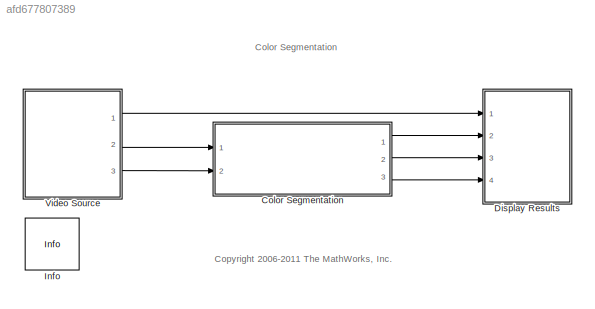
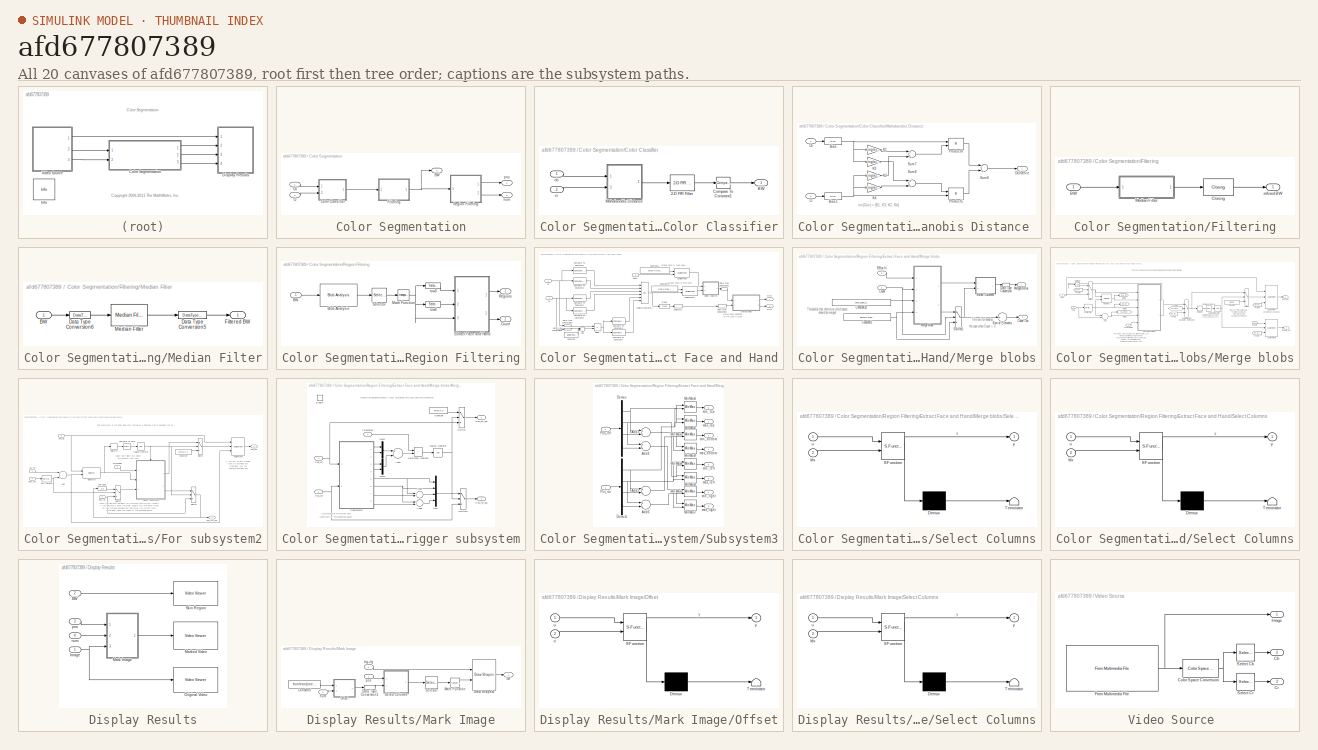
[diagram: thumbnail index - all 20 canvases of the model, root first then tree order]
MODEL slx_afd677807389
KIND model
CONFIG AbsTol = auto
CONFIG FixedStep = auto
CONFIG MaxStep = auto
CONFIG MinStep = auto
CONFIG PreLoadFcn = max_num_blobs = 30;\n% threshold to compare against distance \n% between closest bounding box edges;\n% if the distance in row and column direction\n% is less than the specified threshold, bounding\n% boxes are merged.\nbbox_edge_distance_threshold = [3 3];
CONFIG RelTol = 1e-3
CONFIG SampleTimeConstraint = Unconstrained
CONFIG Solver = FixedStepDiscrete
CONFIG SolverMode = Auto
CONFIG SolverName = FixedStepDiscrete
CONFIG StartTime = 0.0
CONFIG StopTime = inf
BLOCK [SubSystem] Color Segmentation
  Ports = [2, 3]
  RequestExecContextInheritance = off
  Variant = off
BLOCK [Outport] Color Segmentation/BW
  IconDisplay = Port number
BLOCK [Inport] Color Segmentation/Cb
  IconDisplay = Port number
BLOCK [SubSystem] Color Segmentation/Color Classifier
  Ports = [2, 1]
  RequestExecContextInheritance = off
  Variant = off
BLOCK [Reference] Color Segmentation/Color Classifier/2-D FIR Filter  REF=visionfilter/2-D FIR Filter
  Ports = [1, 1]
  SourceBlock = visionfilter/2-D FIR Filter
  SourceType = 2-D FIR Filter
BLOCK [Outport] Color Segmentation/Color Classifier/BW
  IconDisplay = Port number
BLOCK [Reference] Color Segmentation/Color Classifier/Compare To Constant1  REF=simulink/Logic and Bit
Operations/Compare
To Constant
  Ports = [1, 1]
  SourceBlock = simulink/Logic and Bit\nOperations/Compare\nTo Constant
  SourceType = Compare To Constant
BLOCK [SubSystem] Color Segmentation/Color Classifier/Mahalanobis Distance 
  Ports = [2, 1]
  RequestExecContextInheritance = off
  Variant = off
BLOCK [Bias] Color Segmentation/Color Classifier/Mahalanobis Distance /Bias
  Bias = -single(107.9649/255)
  SaturateOnIntegerOverflow = off
BLOCK [Bias] Color Segmentation/Color Classifier/Mahalanobis Distance /Bias1
  Bias = -single(140.8913/255)
  SaturateOnIntegerOverflow = off
BLOCK [Inport] Color Segmentation/Color Classifier/Mahalanobis Distance /Cb
  IconDisplay = Port number
BLOCK [Inport] Color Segmentation/Color Classifier/Mahalanobis Distance /Cr
  IconDisplay = Port number
  Port = 2
BLOCK [Outport] Color Segmentation/Color Classifier/Mahalanobis Distance /Distance
  IconDisplay = Port number
BLOCK [Gain] Color Segmentation/Color Classifier/Mahalanobis Distance /K1
  Gain = single(1.8328501e+03)
BLOCK [Gain] Color Segmentation/Color Classifier/Mahalanobis Distance /K2
  Gain = single(2.2506719e+03)
BLOCK [Gain] Color Segmentation/Color Classifier/Mahalanobis Distance /K3
  Gain = single(2.2506719e+03)
BLOCK [Gain] Color Segmentation/Color Classifier/Mahalanobis Distance /K4
  Gain = single(6.8658257e+03)
BLOCK [Product] Color Segmentation/Color Classifier/Mahalanobis Distance /Product4
  Ports = [2, 1]
  RndMeth = Floor
BLOCK [Product] Color Segmentation/Color Classifier/Mahalanobis Distance /Product5
  Ports = [2, 1]
  RndMeth = Floor
BLOCK [Sum] Color Segmentation/Color Classifier/Mahalanobis Distance /Sum6
  Ports = [2, 1]
BLOCK [Sum] Color Segmentation/Color Classifier/Mahalanobis Distance /Sum7
  Ports = [2, 1]
BLOCK [Sum] Color Segmentation/Color Classifier/Mahalanobis Distance /Sum8
  Ports = [2, 1]
BLOCK [Inport] Color Segmentation/Color Classifier/cb
  IconDisplay = Port number
BLOCK [Inport] Color Segmentation/Color Classifier/cr
  IconDisplay = Port number
  Port = 2
BLOCK [Inport] Color Segmentation/Cr
  IconDisplay = Port number
  Port = 2
BLOCK [SubSystem] Color Segmentation/Filtering
  Ports = [1, 1]
  RequestExecContextInheritance = off
  Variant = off
BLOCK [Inport] Color Segmentation/Filtering/BW
  IconDisplay = Port number
BLOCK [Reference] Color Segmentation/Filtering/Closing  REF=visionmorphops/Closing
  Ports = [1, 1]
  SourceBlock = visionmorphops/Closing
  SourceType = Closing
BLOCK [SubSystem] Color Segmentation/Filtering/Median Filter
  Ports = [1, 1]
  RequestExecContextInheritance = off
  Variant = off
BLOCK [Inport] Color Segmentation/Filtering/Median Filter/BW
  IconDisplay = Port number
BLOCK [DataTypeConversion] Color Segmentation/Filtering/Median Filter/Data Type Conversion5
  OutDataTypeStr = boolean
BLOCK [DataTypeConversion] Color Segmentation/Filtering/Median Filter/Data Type Conversion6
  OutDataTypeStr = single
BLOCK [Outport] Color Segmentation/Filtering/Median Filter/Filtered BW
  IconDisplay = Port number
BLOCK [Reference] Color Segmentation/Filtering/Median Filter/Median Filter  REF=visionanalysis/Median Filter
  Ports = [1, 1]
  SourceBlock = visionanalysis/Median Filter
  SourceType = Median Filter
BLOCK [Outport] Color Segmentation/Filtering/refined BW
  IconDisplay = Port number
BLOCK [SubSystem] Color Segmentation/Region Filtering
  Ports = [1, 2]
  RequestExecContextInheritance = off
  Variant = off
BLOCK [Inport] Color Segmentation/Region Filtering/BW
  IconDisplay = Port number
BLOCK [Reference] Color Segmentation/Region Filtering/Blob Analysis  REF=visionstatistics/Blob Analysis
  Ports = [1, 1]
  SourceBlock = visionstatistics/Blob Analysis
  SourceType = Blob Analysis
  Tag = vipblks_row_conv
BLOCK [Outport] Color Segmentation/Region Filtering/Count
  IconDisplay = Port number
  Port = 2
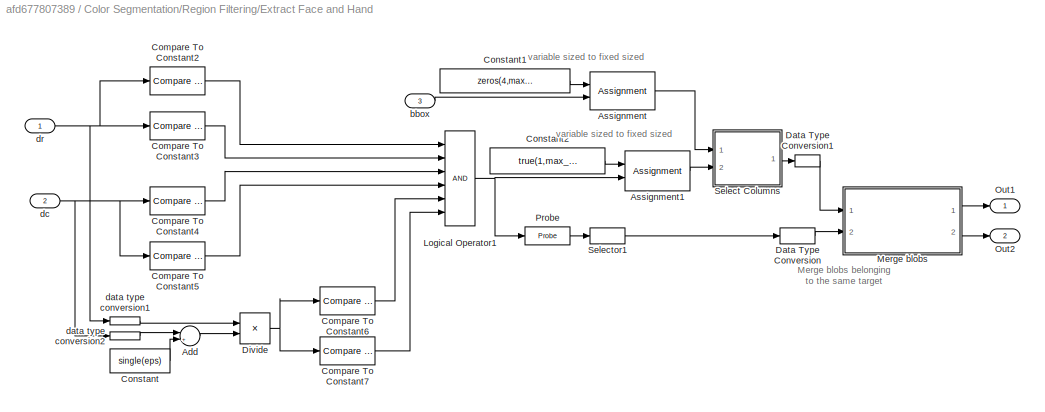
BLOCK [SubSystem] Color Segmentation/Region Filtering/Extract Face and Hand
  Ports = [3, 2]
  RequestExecContextInheritance = off
  Variant = off
BLOCK [Sum] Color Segmentation/Region Filtering/Extract Face and Hand/Add
  IconShape = round
  InputSameDT = off
  Inputs = |++
  OutDataTypeStr = Inherit: Inherit via internal rule
  Ports = [2, 1]
  SaturateOnIntegerOverflow = off
BLOCK [Assignment] Color Segmentation/Region Filtering/Extract Face and Hand/Assignment
  IndexMode = Zero-based
  IndexOptions = Assign all,Starting index (dialog)
  Indices = 0,0
  NumberOfDimensions = 2
  OutputInitialize = Specify size for each dimension in table
  OutputSizes = 1,1
  Ports = [2, 1]
BLOCK [Assignment] Color Segmentation/Region Filtering/Extract Face and Hand/Assignment1
  IndexMode = Zero-based
  IndexOptions = Assign all,Starting index (dialog)
  Indices = 0,0
  NumberOfDimensions = 2
  OutputInitialize = Specify size for each dimension in table
  OutputSizes = 1,1
  Ports = [2, 1]
BLOCK [Reference] Color Segmentation/Region Filtering/Extract Face and Hand/Compare To Constant2  REF=simulink/Logic and Bit
Operations/Compare
To Constant
  Ports = [1, 1]
  SourceBlock = simulink/Logic and Bit\nOperations/Compare\nTo Constant
  SourceType = Compare To Constant
BLOCK [Reference] Color Segmentation/Region Filtering/Extract Face and Hand/Compare To Constant3  REF=simulink/Logic and Bit
Operations/Compare
To Constant
  Ports = [1, 1]
  SourceBlock = simulink/Logic and Bit\nOperations/Compare\nTo Constant
  SourceType = Compare To Constant
BLOCK [Reference] Color Segmentation/Region Filtering/Extract Face and Hand/Compare To Constant4  REF=simulink/Logic and Bit
Operations/Compare
To Constant
  Ports = [1, 1]
  SourceBlock = simulink/Logic and Bit\nOperations/Compare\nTo Constant
  SourceType = Compare To Constant
BLOCK [Reference] Color Segmentation/Region Filtering/Extract Face and Hand/Compare To Constant5  REF=simulink/Logic and Bit
Operations/Compare
To Constant
  Ports = [1, 1]
  SourceBlock = simulink/Logic and Bit\nOperations/Compare\nTo Constant
  SourceType = Compare To Constant
BLOCK [Reference] Color Segmentation/Region Filtering/Extract Face and Hand/Compare To Constant6  REF=simulink/Logic and Bit
Operations/Compare
To Constant
  Ports = [1, 1]
  SourceBlock = simulink/Logic and Bit\nOperations/Compare\nTo Constant
  SourceType = Compare To Constant
BLOCK [Reference] Color Segmentation/Region Filtering/Extract Face and Hand/Compare To Constant7  REF=simulink/Logic and Bit
Operations/Compare
To Constant
  Ports = [1, 1]
  SourceBlock = simulink/Logic and Bit\nOperations/Compare\nTo Constant
  SourceType = Compare To Constant
BLOCK [Constant] Color Segmentation/Region Filtering/Extract Face and Hand/Constant
  Value = single(eps)
BLOCK [Constant] Color Segmentation/Region Filtering/Extract Face and Hand/Constant1
  OutDataTypeStr = int32
  Value = zeros(4,max_num_blobs)
BLOCK [Constant] Color Segmentation/Region Filtering/Extract Face and Hand/Constant2
  Value = true(1,max_num_blobs)
  VectorParams1D = off
BLOCK [DataTypeConversion] Color Segmentation/Region Filtering/Extract Face and Hand/Data Type Conversion
  OutDataTypeStr = uint8
  RndMeth = Floor
  SaturateOnIntegerOverflow = off
BLOCK [DataTypeConversion] Color Segmentation/Region Filtering/Extract Face and Hand/Data Type Conversion1
  OutDataTypeStr = int32
  RndMeth = Floor
  SaturateOnIntegerOverflow = off
BLOCK [Product] Color Segmentation/Region Filtering/Extract Face and Hand/Divide
  InputSameDT = off
  Inputs = */
  OutDataTypeStr = Inherit: Inherit via internal rule
  Ports = [2, 1]
  RndMeth = Floor
  SaturateOnIntegerOverflow = off
BLOCK [Logic] Color Segmentation/Region Filtering/Extract Face and Hand/Logical Operator1
  AllPortsSameDT = off
  Inputs = 6
  OutDataTypeStr = boolean
  Ports = [6, 1]
BLOCK [SubSystem] Color Segmentation/Region Filtering/Extract Face and Hand/Merge blobs
  Ports = [2, 2]
  RequestExecContextInheritance = off
  Variant = off
BLOCK [Inport] Color Segmentation/Region Filtering/Extract Face and Hand/Merge blobs/BBox In
  IconDisplay = Port number
BLOCK [Constant] Color Segmentation/Region Filtering/Extract Face and Hand/Merge blobs/Constant1
  OutDataTypeStr = Inherit: Inherit via back propagation
  Value = zeros(1,max_num_blobs)
  VectorParams1D = off
BLOCK [Constant] Color Segmentation/Region Filtering/Extract Face and Hand/Merge blobs/Constant22
  OutDataTypeStr = Inherit: Inherit via back propagation
  Value = bbox_edge_distance_threshold
  VectorParams1D = off
BLOCK [Inport] Color Segmentation/Region Filtering/Extract Face and Hand/Merge blobs/Count
  IconDisplay = Port number
  Port = 2
BLOCK [Outport] Color Segmentation/Region Filtering/Extract Face and Hand/Merge blobs/Count Out
  IconDisplay = Port number
  Port = 2
BLOCK [DataTypeConversion] Color Segmentation/Region Filtering/Extract Face and Hand/Merge blobs/Data Type Conversion
  OutDataTypeStr = int32
  RndMeth = Floor
  SaturateOnIntegerOverflow = off
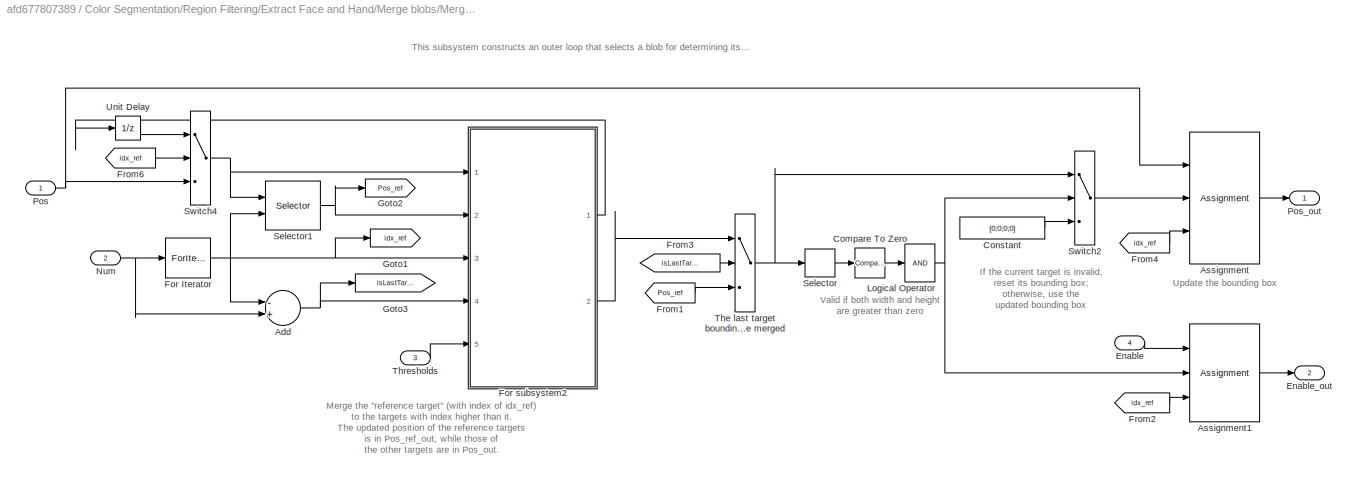
BLOCK [SubSystem] Color Segmentation/Region Filtering/Extract Face and Hand/Merge blobs/Merge blobs
  Ports = [4, 2]
  RequestExecContextInheritance = off
  Variant = off
BLOCK [Sum] Color Segmentation/Region Filtering/Extract Face and Hand/Merge blobs/Merge blobs/Add
  InputSameDT = off
  Inputs = -+
  OutDataTypeStr = Inherit: Inherit via internal rule
  Ports = [2, 1]
  SaturateOnIntegerOverflow = off
BLOCK [Assignment] Color Segmentation/Region Filtering/Extract Face and Hand/Merge blobs/Merge blobs/Assignment
  IndexOptions = Assign all,Index vector (port)
  Indices = (-1),(-1)
  NumberOfDimensions = 2
  OutputSizes = 1, 1
  Ports = [3, 1]
BLOCK [Assignment] Color Segmentation/Region Filtering/Extract Face and Hand/Merge blobs/Merge blobs/Assignment1
  IndexOptions = Assign all,Index vector (port)
  Indices = (-1),(-1)
  NumberOfDimensions = 2
  OutputSizes = 1, 1
  Ports = [3, 1]
BLOCK [Reference] Color Segmentation/Region Filtering/Extract Face and Hand/Merge blobs/Merge blobs/Compare To Zero  REF=simulink/Logic and Bit
Operations/Compare
To Zero
  Ports = [1, 1]
  SourceBlock = simulink/Logic and Bit\nOperations/Compare\nTo Zero
  SourceType = Compare To Zero
BLOCK [Constant] Color Segmentation/Region Filtering/Extract Face and Hand/Merge blobs/Merge blobs/Constant
  OutDataTypeStr = Inherit: Inherit via back propagation
  Value = [0;0;0;0]
BLOCK [Inport] Color Segmentation/Region Filtering/Extract Face and Hand/Merge blobs/Merge blobs/Enable
  IconDisplay = Port number
  Port = 4
BLOCK [Outport] Color Segmentation/Region Filtering/Extract Face and Hand/Merge blobs/Merge blobs/Enable_out
  IconDisplay = Port number
  Port = 2
BLOCK [ForIterator] Color Segmentation/Region Filtering/Extract Face and Hand/Merge blobs/Merge blobs/For Iterator
  IterationSource = external
  Ports = [1, 1]
  ResetStates = reset
BLOCK [SubSystem] Color Segmentation/Region Filtering/Extract Face and Hand/Merge blobs/Merge blobs/For subsystem2
  Ports = [5, 2]
  RequestExecContextInheritance = off
  Variant = off
BLOCK [Sum] Color Segmentation/Region Filtering/Extract Face and Hand/Merge blobs/Merge blobs/For subsystem2/Add
  InputSameDT = off
  OutDataTypeStr = Inherit: Inherit via internal rule
  Ports = [2, 1]
  SaturateOnIntegerOverflow = off
BLOCK [Assignment] Color Segmentation/Region Filtering/Extract Face and Hand/Merge blobs/Merge blobs/For subsystem2/Assignment
  IndexOptions = Assign all,Index vector (port)
  Indices = (-1),(-1)
  NumberOfDimensions = 2
  OutputSizes = 1, 1
  Ports = [3, 1]
BLOCK [Reference] Color Segmentation/Region Filtering/Extract Face and Hand/Merge blobs/Merge blobs/For subsystem2/Compare To Zero  REF=simulink/Logic and Bit
Operations/Compare
To Zero
  Ports = [1, 1]
  SourceBlock = simulink/Logic and Bit\nOperations/Compare\nTo Zero
  SourceType = Compare To Zero
BLOCK [Constant] Color Segmentation/Region Filtering/Extract Face and Hand/Merge blobs/Merge blobs/For subsystem2/Constant
  OutDataTypeStr = Inherit: Inherit via back propagation
  Value = zeros(4,1)
  VectorParams1D = off
BLOCK [ForIterator] Color Segmentation/Region Filtering/Extract Face and Hand/Merge blobs/Merge blobs/For subsystem2/For Iterator
  IterationSource = external
  Ports = [1, 1]
  ResetStates = reset
BLOCK [Inport] Color Segmentation/Region Filtering/Extract Face and Hand/Merge blobs/Merge blobs/For subsystem2/Idx_ref
  IconDisplay = Port number
  Port = 3
BLOCK [Logic] Color Segmentation/Region Filtering/Extract Face and Hand/Merge blobs/Merge blobs/For subsystem2/Logical Operator
  AllPortsSameDT = off
  Inputs = 1
  OutDataTypeStr = boolean
  Ports = [1, 1]
BLOCK [Inport] Color Segmentation/Region Filtering/Extract Face and Hand/Merge blobs/Merge blobs/For subsystem2/Num_cur
  IconDisplay = Port number
  Port = 4
BLOCK [Inport] Color Segmentation/Region Filtering/Extract Face and Hand/Merge blobs/Merge blobs/For subsystem2/Pos_all
  IconDisplay = Port number
BLOCK [Outport] Color Segmentation/Region Filtering/Extract Face and Hand/Merge blobs/Merge blobs/For subsystem2/Pos_out
  IconDisplay = Port number
BLOCK [Inport] Color Segmentation/Region Filtering/Extract Face and Hand/Merge blobs/Merge blobs/For subsystem2/Pos_ref
  IconDisplay = Port number
  Port = 2
BLOCK [Outport] Color Segmentation/Region Filtering/Extract Face and Hand/Merge blobs/Merge blobs/For subsystem2/Pos_ref_out
  IconDisplay = Port number
  Port = 2
BLOCK [Selector] Color Segmentation/Region Filtering/Extract Face and Hand/Merge blobs/Merge blobs/For subsystem2/Selector1
  IndexOptions = Index vector (dialog)
  Indices = ([3 4])
  InputPortWidth = 4
  OutputSizes = 1
  Ports = [1, 1]
BLOCK [Selector] Color Segmentation/Region Filtering/Extract Face and Hand/Merge blobs/Merge blobs/For subsystem2/Selector3
  IndexOptions = Select all,Index vector (port)
  Indices = (-1),(-1)
  InputPortWidth = 3
  NumberOfDimensions = 2
  OutputSizes = 1
  Ports = [2, 1]
BLOCK [Switch] Color Segmentation/Region Filtering/Extract Face and Hand/Merge blobs/Merge blobs/For subsystem2/Switch
  Criteria = u2 ~= 0
  InputSameDT = off
  SaturateOnIntegerOverflow = off
BLOCK [Switch] Color Segmentation/Region Filtering/Extract Face and Hand/Merge blobs/Merge blobs/For subsystem2/Switch1
  Criteria = u2 ~= 0
  InputSameDT = off
  SaturateOnIntegerOverflow = off
BLOCK [Switch] Color Segmentation/Region Filtering/Extract Face and Hand/Merge blobs/Merge blobs/For subsystem2/Switch2
  Criteria = u2 > Threshold
  InputSameDT = off
  SaturateOnIntegerOverflow = off
  Threshold = 1
BLOCK [Inport] Color Segmentation/Region Filtering/Extract Face and Hand/Merge blobs/Merge blobs/For subsystem2/Thresholds
  IconDisplay = Port number
  Port = 5
BLOCK [SubSystem] Color Segmentation/Region Filtering/Extract Face and Hand/Merge blobs/Merge blobs/For subsystem2/Trigger subsystem
  Ports = [3, 2, 1]
  RequestExecContextInheritance = off
  Variant = off
BLOCK [Sum] Color Segmentation/Region Filtering/Extract Face and Hand/Merge blobs/Merge blobs/For subsystem2/Trigger subsystem/Add2
  InputSameDT = off
  Inputs = +-
  OutDataTypeStr = Inherit: Inherit via internal rule
  Ports = [2, 1]
  SaturateOnIntegerOverflow = off
BLOCK [Sum] Color Segmentation/Region Filtering/Extract Face and Hand/Merge blobs/Merge blobs/For subsystem2/Trigger subsystem/Add7
  InputSameDT = off
  Inputs = -+
  OutDataTypeStr = Inherit: Inherit via internal rule
  Ports = [2, 1]
  SaturateOnIntegerOverflow = off
BLOCK [Sum] Color Segmentation/Region Filtering/Extract Face and Hand/Merge blobs/Merge blobs/For subsystem2/Trigger subsystem/Add8
  InputSameDT = off
  Inputs = -+
  OutDataTypeStr = Inherit: Inherit via internal rule
  Ports = [2, 1]
  SaturateOnIntegerOverflow = off
BLOCK [Constant] Color Segmentation/Region Filtering/Extract Face and Hand/Merge blobs/Merge blobs/For subsystem2/Trigger subsystem/Constant
  OutDataTypeStr = Inherit: Inherit via back propagation
  Value = zeros(4,1)
  VectorParams1D = off
BLOCK [EnablePort] Color Segmentation/Region Filtering/Extract Face and Hand/Merge blobs/Merge blobs/For subsystem2/Trigger subsystem/Enable
  Ports = []
  PropagateVarSize = During execution
BLOCK [Logic] Color Segmentation/Region Filtering/Extract Face and Hand/Merge blobs/Merge blobs/For subsystem2/Trigger subsystem/Logical Operator
  AllPortsSameDT = off
  Inputs = 1
  OutDataTypeStr = boolean
  Ports = [1, 1]
BLOCK [Mux] Color Segmentation/Region Filtering/Extract Face and Hand/Merge blobs/Merge blobs/For subsystem2/Trigger subsystem/Mux
  DisplayOption = bar
  Ports = [4, 1]
BLOCK [Mux] Color Segmentation/Region Filtering/Extract Face and Hand/Merge blobs/Merge blobs/For subsystem2/Trigger subsystem/Mux2
  DisplayOption = bar
  Inputs = 2
  Ports = [2, 1]
BLOCK [Mux] Color Segmentation/Region Filtering/Extract Face and Hand/Merge blobs/Merge blobs/For subsystem2/Trigger subsystem/Mux3
  DisplayOption = bar
  Inputs = 2
  Ports = [2, 1]
BLOCK [Inport] Color Segmentation/Region Filtering/Extract Face and Hand/Merge blobs/Merge blobs/For subsystem2/Trigger subsystem/Pos_cur
  IconDisplay = Port number
  Port = 2
BLOCK [Outport] Color Segmentation/Region Filtering/Extract Face and Hand/Merge blobs/Merge blobs/For subsystem2/Trigger subsystem/Pos_cur_out
  IconDisplay = Port number
BLOCK [Inport] Color Segmentation/Region Filtering/Extract Face and Hand/Merge blobs/Merge blobs/For subsystem2/Trigger subsystem/Pos_ref
  IconDisplay = Port number
  Port = 3
BLOCK [Outport] Color Segmentation/Region Filtering/Extract Face and Hand/Merge blobs/Merge blobs/For subsystem2/Trigger subsystem/Pos_ref_out
  IconDisplay = Port number
  Port = 2
BLOCK [RelationalOperator] Color Segmentation/Region Filtering/Extract Face and Hand/Merge blobs/Merge blobs/For subsystem2/Trigger subsystem/Relational Operator
  InputSameDT = off
  Operator = >
  OutDataTypeStr = boolean
  Ports = [2, 1]
BLOCK [SubSystem] Color Segmentation/Region Filtering/Extract Face and Hand/Merge blobs/Merge blobs/For subsystem2/Trigger subsystem/Subsystem3
  Ports = [2, 8]
  RequestExecContextInheritance = off
  Variant = off
BLOCK [Sum] Color Segmentation/Region Filtering/Extract Face and Hand/Merge blobs/Merge blobs/For subsystem2/Trigger subsystem/Subsystem3/Add3
  InputSameDT = off
  OutDataTypeStr = Inherit: Inherit via internal rule
  Ports = [2, 1]
  SaturateOnIntegerOverflow = off
BLOCK [Sum] Color Segmentation/Region Filtering/Extract Face and Hand/Merge blobs/Merge blobs/For subsystem2/Trigger subsystem/Subsystem3/Add4
  InputSameDT = off
  OutDataTypeStr = Inherit: Inherit via internal rule
  Ports = [2, 1]
  SaturateOnIntegerOverflow = off
BLOCK [Sum] Color Segmentation/Region Filtering/Extract Face and Hand/Merge blobs/Merge blobs/For subsystem2/Trigger subsystem/Subsystem3/Add5
  InputSameDT = off
  OutDataTypeStr = Inherit: Inherit via internal rule
  Ports = [2, 1]
  SaturateOnIntegerOverflow = off
BLOCK [Sum] Color Segmentation/Region Filtering/Extract Face and Hand/Merge blobs/Merge blobs/For subsystem2/Trigger subsystem/Subsystem3/Add6
  InputSameDT = off
  OutDataTypeStr = Inherit: Inherit via internal rule
  Ports = [2, 1]
  SaturateOnIntegerOverflow = off
BLOCK [Demux] Color Segmentation/Region Filtering/Extract Face and Hand/Merge blobs/Merge blobs/For subsystem2/Trigger subsystem/Subsystem3/Demux
  DisplayOption = bar
  Ports = [1, 4]
BLOCK [Demux] Color Segmentation/Region Filtering/Extract Face and Hand/Merge blobs/Merge blobs/For subsystem2/Trigger subsystem/Subsystem3/Demux1
  DisplayOption = bar
  Ports = [1, 4]
BLOCK [MinMax] Color Segmentation/Region Filtering/Extract Face and Hand/Merge blobs/Merge blobs/For subsystem2/Trigger subsystem/Subsystem3/MinMax2
  Function = max
  InputSameDT = off
  Inputs = 2
  Ports = [2, 1]
  SaturateOnIntegerOverflow = off
BLOCK [MinMax] Color Segmentation/Region Filtering/Extract Face and Hand/Merge blobs/Merge blobs/For subsystem2/Trigger subsystem/Subsystem3/MinMax3
  InputSameDT = off
  Inputs = 2
  Ports = [2, 1]
  SaturateOnIntegerOverflow = off
BLOCK [MinMax] Color Segmentation/Region Filtering/Extract Face and Hand/Merge blobs/Merge blobs/For subsystem2/Trigger subsystem/Subsystem3/MinMax4
  Function = max
  InputSameDT = off
  Inputs = 2
  Ports = [2, 1]
  SaturateOnIntegerOverflow = off
BLOCK [MinMax] Color Segmentation/Region Filtering/Extract Face and Hand/Merge blobs/Merge blobs/For subsystem2/Trigger subsystem/Subsystem3/MinMax5
  InputSameDT = off
  Inputs = 2
  Ports = [2, 1]
  SaturateOnIntegerOverflow = off
BLOCK [MinMax] Color Segmentation/Region Filtering/Extract Face and Hand/Merge blobs/Merge blobs/For subsystem2/Trigger subsystem/Subsystem3/MinMax6
  InputSameDT = off
  Inputs = 2
  Ports = [2, 1]
  SaturateOnIntegerOverflow = off
BLOCK [MinMax] Color Segmentation/Region Filtering/Extract Face and Hand/Merge blobs/Merge blobs/For subsystem2/Trigger subsystem/Subsystem3/MinMax7
  Function = max
  InputSameDT = off
  Inputs = 2
  Ports = [2, 1]
  SaturateOnIntegerOverflow = off
BLOCK [MinMax] Color Segmentation/Region Filtering/Extract Face and Hand/Merge blobs/Merge blobs/For subsystem2/Trigger subsystem/Subsystem3/MinMax8
  InputSameDT = off
  Inputs = 2
  Ports = [2, 1]
  SaturateOnIntegerOverflow = off
BLOCK [MinMax] Color Segmentation/Region Filtering/Extract Face and Hand/Merge blobs/Merge blobs/For subsystem2/Trigger subsystem/Subsystem3/MinMax9
  Function = max
  InputSameDT = off
  Inputs = 2
  Ports = [2, 1]
  SaturateOnIntegerOverflow = off
BLOCK [Inport] Color Segmentation/Region Filtering/Extract Face and Hand/Merge blobs/Merge blobs/For subsystem2/Trigger subsystem/Subsystem3/Pos_cur
  IconDisplay = Port number
BLOCK [Inport] Color Segmentation/Region Filtering/Extract Face and Hand/Merge blobs/Merge blobs/For subsystem2/Trigger subsystem/Subsystem3/Pos_ref
  IconDisplay = Port number
  Port = 2
BLOCK [Outport] Color Segmentation/Region Filtering/Extract Face and Hand/Merge blobs/Merge blobs/For subsystem2/Trigger subsystem/Subsystem3/max_bottom
  IconDisplay = Port number
  Port = 7
BLOCK [Outport] Color Segmentation/Region Filtering/Extract Face and Hand/Merge blobs/Merge blobs/For subsystem2/Trigger subsystem/Subsystem3/max_left
  IconDisplay = Port number
  Port = 2
BLOCK [Outport] Color Segmentation/Region Filtering/Extract Face and Hand/Merge blobs/Merge blobs/For subsystem2/Trigger subsystem/Subsystem3/max_right
  IconDisplay = Port number
  Port = 8
BLOCK [Outport] Color Segmentation/Region Filtering/Extract Face and Hand/Merge blobs/Merge blobs/For subsystem2/Trigger subsystem/Subsystem3/max_top
  IconDisplay = Port number
BLOCK [Outport] Color Segmentation/Region Filtering/Extract Face and Hand/Merge blobs/Merge blobs/For subsystem2/Trigger subsystem/Subsystem3/min_bottom
  IconDisplay = Port number
  Port = 3
BLOCK [Outport] Color Segmentation/Region Filtering/Extract Face and Hand/Merge blobs/Merge blobs/For subsystem2/Trigger subsystem/Subsystem3/min_left
  IconDisplay = Port number
  Port = 6
BLOCK [Outport] Color Segmentation/Region Filtering/Extract Face and Hand/Merge blobs/Merge blobs/For subsystem2/Trigger subsystem/Subsystem3/min_right
  IconDisplay = Port number
  Port = 4
BLOCK [Outport] Color Segmentation/Region Filtering/Extract Face and Hand/Merge blobs/Merge blobs/For subsystem2/Trigger subsystem/Subsystem3/min_top
  IconDisplay = Port number
  Port = 5
BLOCK [Switch] Color Segmentation/Region Filtering/Extract Face and Hand/Merge blobs/Merge blobs/For subsystem2/Trigger subsystem/Switch
  Criteria = u2 ~= 0
  InputSameDT = off
  SaturateOnIntegerOverflow = off
BLOCK [Switch] Color Segmentation/Region Filtering/Extract Face and Hand/Merge blobs/Merge blobs/For subsystem2/Trigger subsystem/Switch1
  Criteria = u2 ~= 0
  InputSameDT = off
  SaturateOnIntegerOverflow = off
BLOCK [Inport] Color Segmentation/Region Filtering/Extract Face and Hand/Merge blobs/Merge blobs/For subsystem2/Trigger subsystem/Thresholds
  IconDisplay = Port number
BLOCK [UnitDelay] Color Segmentation/Region Filtering/Extract Face and Hand/Merge blobs/Merge blobs/For subsystem2/Unit Delay
  InputProcessing = Elements as channels (sample based)
  SampleTime = -1
BLOCK [From] Color Segmentation/Region Filtering/Extract Face and Hand/Merge blobs/Merge blobs/From1
  CloseFcn = tagdialog Close
  GotoTag = Pos_ref
BLOCK [From] Color Segmentation/Region Filtering/Extract Face and Hand/Merge blobs/Merge blobs/From2
  CloseFcn = tagdialog Close
  GotoTag = idx_ref
BLOCK [From] Color Segmentation/Region Filtering/Extract Face and Hand/Merge blobs/Merge blobs/From3
  CloseFcn = tagdialog Close
  GotoTag = isLastTarget
BLOCK [From] Color Segmentation/Region Filtering/Extract Face and Hand/Merge blobs/Merge blobs/From4
  CloseFcn = tagdialog Close
  GotoTag = idx_ref
BLOCK [From] Color Segmentation/Region Filtering/Extract Face and Hand/Merge blobs/Merge blobs/From6
  CloseFcn = tagdialog Close
  GotoTag = idx_ref
BLOCK [Goto] Color Segmentation/Region Filtering/Extract Face and Hand/Merge blobs/Merge blobs/Goto1
  GotoTag = idx_ref
BLOCK [Goto] Color Segmentation/Region Filtering/Extract Face and Hand/Merge blobs/Merge blobs/Goto2
  GotoTag = Pos_ref
BLOCK [Goto] Color Segmentation/Region Filtering/Extract Face and Hand/Merge blobs/Merge blobs/Goto3
  GotoTag = isLastTarget
BLOCK [Logic] Color Segmentation/Region Filtering/Extract Face and Hand/Merge blobs/Merge blobs/Logical Operator
  AllPortsSameDT = off
  Inputs = 1
  OutDataTypeStr = boolean
  Ports = [1, 1]
BLOCK [Inport] Color Segmentation/Region Filtering/Extract Face and Hand/Merge blobs/Merge blobs/Num
  IconDisplay = Port number
  Port = 2
BLOCK [Inport] Color Segmentation/Region Filtering/Extract Face and Hand/Merge blobs/Merge blobs/Pos
  IconDisplay = Port number
BLOCK [Outport] Color Segmentation/Region Filtering/Extract Face and Hand/Merge blobs/Merge blobs/Pos_out
  IconDisplay = Port number
BLOCK [Selector] Color Segmentation/Region Filtering/Extract Face and Hand/Merge blobs/Merge blobs/Selector
  IndexOptions = Index vector (dialog)
  Indices = ([3 4])
  InputPortWidth = 4
  OutputSizes = 1
  Ports = [1, 1]
BLOCK [Selector] Color Segmentation/Region Filtering/Extract Face and Hand/Merge blobs/Merge blobs/Selector1
  IndexOptions = Select all,Index vector (port)
  Indices = (-1),(-1)
  InputPortWidth = 3
  NumberOfDimensions = 2
  OutputSizes = 1
  Ports = [2, 1]
BLOCK [Switch] Color Segmentation/Region Filtering/Extract Face and Hand/Merge blobs/Merge blobs/Switch2
  Criteria = u2 ~= 0
  InputSameDT = off
  SaturateOnIntegerOverflow = off
  Threshold = 1
BLOCK [Switch] Color Segmentation/Region Filtering/Extract Face and Hand/Merge blobs/Merge blobs/Switch4
  Criteria = u2 > Threshold
  SaturateOnIntegerOverflow = off
  Threshold = 1
BLOCK [Switch] Color Segmentation/Region Filtering/Extract Face and Hand/Merge blobs/Merge blobs/The last target bounding box does not need to be merged
  Criteria = u2 ~= 0
  InputSameDT = off
  SaturateOnIntegerOverflow = off
  Threshold = 1
BLOCK [Inport] Color Segmentation/Region Filtering/Extract Face and Hand/Merge blobs/Merge blobs/Thresholds
  IconDisplay = Port number
  Port = 3
BLOCK [UnitDelay] Color Segmentation/Region Filtering/Extract Face and Hand/Merge blobs/Merge blobs/Unit Delay
  InputProcessing = Elements as channels (sample based)
  SampleTime = -1
BLOCK [Outport] Color Segmentation/Region Filtering/Extract Face and Hand/Merge blobs/Merged BBox
  IconDisplay = Port number
BLOCK [SubSystem] Color Segmentation/Region Filtering/Extract Face and Hand/Merge blobs/Select Columns
  ErrorFcn = Stateflow.Translate.translate
  PermitHierarchicalResolution = ExplicitOnly
  Ports = [2, 1]
  RequestExecContextInheritance = off
  SFBlockType = MATLAB Function
  TreatAsAtomicUnit = on
  Variant = off
BLOCK [Demux] Color Segmentation/Region Filtering/Extract Face and Hand/Merge blobs/Select Columns/ Demux 
  Outputs = 1
  Ports = [1, 1]
BLOCK [S-Function] Color Segmentation/Region Filtering/Extract Face and Hand/Merge blobs/Select Columns/ SFunction 
  EnableBusSupport = off
  FunctionName = sf_sfun
  PortCounts = [2 2]
  Ports = [2, 2]
  SFunctionDeploymentMode = off
  Tag = Stateflow S-Function vipcolorsegmentation 4
BLOCK [Terminator] Color Segmentation/Region Filtering/Extract Face and Hand/Merge blobs/Select Columns/ Terminator 
BLOCK [Inport] Color Segmentation/Region Filtering/Extract Face and Hand/Merge blobs/Select Columns/Idx
  IconDisplay = Port number
  Port = 2
BLOCK [Inport] Color Segmentation/Region Filtering/Extract Face and Hand/Merge blobs/Select Columns/u
  IconDisplay = Port number
BLOCK [Outport] Color Segmentation/Region Filtering/Extract Face and Hand/Merge blobs/Select Columns/y
  IconDisplay = Port number
BLOCK [Sum] Color Segmentation/Region Filtering/Extract Face and Hand/Merge blobs/Sum of Elements
  InputSameDT = off
  Inputs = +
  OutDataTypeStr = Inherit: Inherit via internal rule
  Ports = [1, 1]
  SaturateOnIntegerOverflow = off
BLOCK [Switch] Color Segmentation/Region Filtering/Extract Face and Hand/Merge blobs/Switch1
  Criteria = u2 ~= 0
  InputSameDT = off
  SaturateOnIntegerOverflow = off
  Threshold = 1
  ZeroCross = off
BLOCK [Outport] Color Segmentation/Region Filtering/Extract Face and Hand/Out1
  IconDisplay = Port number
BLOCK [Outport] Color Segmentation/Region Filtering/Extract Face and Hand/Out2
  IconDisplay = Port number
  Port = 2
BLOCK [Probe] Color Segmentation/Region Filtering/Extract Face and Hand/Probe
  Ports = [1, 1]
  ProbeComplexSignal = off
  ProbeSampleTime = off
  ProbeSignalDimensions = on
  ProbeWidth = off
  ProbeWidthDataType = uint8
BLOCK [SubSystem] Color Segmentation/Region Filtering/Extract Face and Hand/Select Columns
  ErrorFcn = Stateflow.Translate.translate
  PermitHierarchicalResolution = ExplicitOnly
  Ports = [2, 1]
  RequestExecContextInheritance = off
  SFBlockType = MATLAB Function
  TreatAsAtomicUnit = on
  Variant = off
BLOCK [Demux] Color Segmentation/Region Filtering/Extract Face and Hand/Select Columns/ Demux 
  Outputs = 1
  Ports = [1, 1]
BLOCK [S-Function] Color Segmentation/Region Filtering/Extract Face and Hand/Select Columns/ SFunction 
  EnableBusSupport = off
  FunctionName = sf_sfun
  PortCounts = [2 2]
  Ports = [2, 2]
  SFunctionDeploymentMode = off
  Tag = Stateflow S-Function vipcolorsegmentation 2
BLOCK [Terminator] Color Segmentation/Region Filtering/Extract Face and Hand/Select Columns/ Terminator 
BLOCK [Inport] Color Segmentation/Region Filtering/Extract Face and Hand/Select Columns/Idx
  IconDisplay = Port number
  Port = 2
BLOCK [Inport] Color Segmentation/Region Filtering/Extract Face and Hand/Select Columns/u
  IconDisplay = Port number
BLOCK [Outport] Color Segmentation/Region Filtering/Extract Face and Hand/Select Columns/y
  IconDisplay = Port number
BLOCK [Selector] Color Segmentation/Region Filtering/Extract Face and Hand/Selector1
  IndexOptions = Index vector (dialog),Index vector (dialog)
  Indices = 1,2
  InputPortWidth = 3
  NumberOfDimensions = 2
  OutputSizes = 99,1
  Ports = [1, 1]
BLOCK [Inport] Color Segmentation/Region Filtering/Extract Face and Hand/bbox
  IconDisplay = Port number
  Port = 3
BLOCK [DataTypeConversion] Color Segmentation/Region Filtering/Extract Face and Hand/data type conversion1
  OutDataTypeStr = single
BLOCK [DataTypeConversion] Color Segmentation/Region Filtering/Extract Face and Hand/data type conversion2
  OutDataTypeStr = single
BLOCK [Inport] Color Segmentation/Region Filtering/Extract Face and Hand/dc
  IconDisplay = Port number
  Port = 2
BLOCK [Inport] Color Segmentation/Region Filtering/Extract Face and Hand/dr
  IconDisplay = Port number
BLOCK [Math] Color Segmentation/Region Filtering/Math Function
  Operator = transpose
  Ports = [1, 1]
BLOCK [Outport] Color Segmentation/Region Filtering/Regions
  IconDisplay = Port number
BLOCK [Selector] Color Segmentation/Region Filtering/Selector
  IndexOptions = Select all,Index vector (dialog)
  Indices = [2 1 4 3],[2 1 4 3]
  InputPortWidth = 3
  NumberOfDimensions = 2
  OutputSizes = 1,1
  Ports = [1, 1]
BLOCK [Selector] Color Segmentation/Region Filtering/row3
  IndexOptions = Index vector (dialog),Select all
  Indices = 3,1
  InputPortWidth = 3
  NumberOfDimensions = 2
  OutputSizes = 1,1
  Ports = [1, 1]
BLOCK [Selector] Color Segmentation/Region Filtering/row4
  IndexOptions = Index vector (dialog),Select all
  Indices = 4,1
  InputPortWidth = 3
  NumberOfDimensions = 2
  OutputSizes = 1,1
  Ports = [1, 1]
BLOCK [Outport] Color Segmentation/num
  IconDisplay = Port number
  Port = 3
BLOCK [Outport] Color Segmentation/pos
  IconDisplay = Port number
  Port = 2
BLOCK [SubSystem] Display Results
  Ports = [4]
  RequestExecContextInheritance = off
  Variant = off
BLOCK [Inport] Display Results/BW
  IconDisplay = Port number
  Port = 2
BLOCK [Inport] Display Results/Image
  IconDisplay = Port number
BLOCK [SubSystem] Display Results/Mark Image
  Ports = [3, 1]
  RequestExecContextInheritance = off
  Variant = off
BLOCK [Constant] Display Results/Mark Image/Constant
  Value = boolean(ones(30,1))
BLOCK [DataTypeConversion] Display Results/Mark Image/Data Type Conversion1
  OutDataTypeStr = boolean
  RndMeth = Floor
  SaturateOnIntegerOverflow = off
BLOCK [Reference] Display Results/Mark Image/Draw Shapes2  REF=visiontextngfix/Draw Shapes
  Ports = [2, 1]
  SourceBlock = visiontextngfix/Draw Shapes
  SourceType = Draw Shapes
BLOCK [Outport] Display Results/Mark Image/IM
  IconDisplay = Port number
BLOCK [Math] Display Results/Mark Image/Math Function
  Operator = transpose
  Ports = [1, 1]
BLOCK [SubSystem] Display Results/Mark Image/Offset
  ErrorFcn = Stateflow.Translate.translate
  PermitHierarchicalResolution = ExplicitOnly
  Ports = [2, 1]
  RequestExecContextInheritance = off
  SFBlockType = MATLAB Function
  TreatAsAtomicUnit = on
  Variant = off
BLOCK [Demux] Display Results/Mark Image/Offset/ Demux 
  Outputs = 1
  Ports = [1, 1]
BLOCK [S-Function] Display Results/Mark Image/Offset/ SFunction 
  EnableBusSupport = off
  FunctionName = sf_sfun
  PortCounts = [2 2]
  Ports = [2, 2]
  SFunctionDeploymentMode = off
  Tag = Stateflow S-Function vipcolorsegmentation 3
BLOCK [Terminator] Display Results/Mark Image/Offset/ Terminator 
BLOCK [Inport] Display Results/Mark Image/Offset/o
  IconDisplay = Port number
  Port = 2
BLOCK [Inport] Display Results/Mark Image/Offset/u
  IconDisplay = Port number
BLOCK [Outport] Display Results/Mark Image/Offset/y
  IconDisplay = Port number
BLOCK [SubSystem] Display Results/Mark Image/Select Columns
  ErrorFcn = Stateflow.Translate.translate
  PermitHierarchicalResolution = ExplicitOnly
  Ports = [2, 1]
  RequestExecContextInheritance = off
  SFBlockType = MATLAB Function
  TreatAsAtomicUnit = on
  Variant = off
BLOCK [Demux] Display Results/Mark Image/Select Columns/ Demux 
  Outputs = 1
  Ports = [1, 1]
BLOCK [S-Function] Display Results/Mark Image/Select Columns/ SFunction 
  EnableBusSupport = off
  FunctionName = sf_sfun
  PortCounts = [2 2]
  Ports = [2, 2]
  SFunctionDeploymentMode = off
  Tag = Stateflow S-Function vipcolorsegmentation 1
BLOCK [Terminator] Display Results/Mark Image/Select Columns/ Terminator 
BLOCK [Inport] Display Results/Mark Image/Select Columns/Idx
  IconDisplay = Port number
  Port = 2
BLOCK [Inport] Display Results/Mark Image/Select Columns/u
  IconDisplay = Port number
BLOCK [Outport] Display Results/Mark Image/Select Columns/y
  IconDisplay = Port number
BLOCK [Selector] Display Results/Mark Image/Selector
  IndexOptions = Index vector (dialog),Select all
  Indices = [2 1 4 3],1
  InputPortWidth = 3
  NumberOfDimensions = 2
  OutputSizes = 1,1
  Ports = [1, 1]
BLOCK [Inport] Display Results/Mark Image/bg+fg
  IconDisplay = Port number
  Port = 3
BLOCK [Inport] Display Results/Mark Image/num
  IconDisplay = Port number
  Port = 2
BLOCK [Inport] Display Results/Mark Image/pos
  IconDisplay = Port number
BLOCK [Reference] Display Results/Marked Video  REF=visionsinks/Video Viewer
  Ports = [1]
  SourceBlock = visionsinks/Video Viewer
  SourceType = Video Viewer
  UserDataPersistent = on
BLOCK [Reference] Display Results/Original Video  REF=visionsinks/Video Viewer
  Ports = [1]
  SourceBlock = visionsinks/Video Viewer
  SourceType = Video Viewer
  UserDataPersistent = on
BLOCK [Reference] Display Results/Skin Region  REF=visionsinks/Video Viewer
  Ports = [1]
  SourceBlock = visionsinks/Video Viewer
  SourceType = Video Viewer
  UserDataPersistent = on
BLOCK [Inport] Display Results/num
  IconDisplay = Port number
  Port = 4
BLOCK [Inport] Display Results/pos
  IconDisplay = Port number
  Port = 3
BLOCK [Reference] Info  REF=vipmisc/Info
  Ports = []
  SourceBlock = vipmisc/Info
  SourceType = Info
BLOCK [SubSystem] Video Source 
  Ports = [0, 3]
  RequestExecContextInheritance = off
  Variant = off
BLOCK [Outport] Video Source /Cb
  IconDisplay = Port number
  Port = 2
BLOCK [Reference] Video Source /Color Space Conversion  REF=visionconversions/Color Space
 Conversion
  Ports = [1, 1]
  SourceBlock = visionconversions/Color Space\n Conversion
  SourceType = Color Space Conversion
BLOCK [Outport] Video Source /Cr
  IconDisplay = Port number
  Port = 3
BLOCK [Reference] Video Source /From Multimedia File  REF=dspvision/From Multimedia File
  Ports = [0, 1]
  SourceBlock = dspvision/From Multimedia File
  SourceType = From Multimedia File
BLOCK [Outport] Video Source /Image
  IconDisplay = Port number
BLOCK [Selector] Video Source /Select Cb
  IndexOptions = Select all,Select all,Index vector (dialog)
  Indices = [1 3],1,2
  InputPortWidth = 3
  NumberOfDimensions = 3
  OutputSizes = 1,1,1
  Ports = [1, 1]
BLOCK [Selector] Video Source /Select Cr
  IndexOptions = Select all,Select all,Index vector (dialog)
  Indices = [1 3],1,3
  InputPortWidth = 3
  NumberOfDimensions = 3
  OutputSizes = 1,1,1
  Ports = [1, 1]
ANNOTATION (root): Color Segmentation
ANNOTATION (root): <copyright redacted>
ANNOTATION Color Segmentation/Color Classifier/Mahalanobis Distance : inv(Cov) = [K1, K3; K2, K4]
ANNOTATION Color Segmentation/Region Filtering/Extract Face and Hand: Merge blobs belonging to the same target
ANNOTATION Color Segmentation/Region Filtering/Extract Face and Hand: variable sized to fixed sized
ANNOTATION Color Segmentation/Region Filtering/Extract Face and Hand/Merge blobs: This switch handles the case when Count = 0
ANNOTATION Color Segmentation/Region Filtering/Extract Face and Hand/Merge blobs: Thresholds that determine which boxes should be merged
ANNOTATION Color Segmentation/Region Filtering/Extract Face and Hand/Merge blobs/Merge blobs: If the current target is invalid, reset its bounding box; otherwise, use the updated bounding box
ANNOTATION Color Segmentation/Region Filtering/Extract Face and Hand/Merge blobs/Merge blobs: Merge the "reference target" (with index of idx_ref) to the targets with index higher than it. The updated position of the reference targets is in Pos_ref_out, while those of the other targets are in Pos_out.
ANNOTATION Color Segmentation/Region Filtering/Extract Face and Hand/Merge blobs/Merge blobs: This subsystem constructs an outer loop that selects a blob for determining its distance to other blobs
ANNOTATION Color Segmentation/Region Filtering/Extract Face and Hand/Merge blobs/Merge blobs: Update the bounding box
ANNOTATION Color Segmentation/Region Filtering/Extract Face and Hand/Merge blobs/Merge blobs: Valid if both width and height are greater than zero
ANNOTATION Color Segmentation/Region Filtering/Extract Face and Hand/Merge blobs/Merge blobs/For subsystem2: Check the distance between the reference and current targets. If the distance is within threshold, update the reference target by the merged bounding box and reset the current ones. Otherwise, keep the values of the bounding boxes.
ANNOTATION Color Segmentation/Region Filtering/Extract Face and Hand/Merge blobs/Merge blobs/For subsystem2: If current target is invalid, reset its bounding box; otherwise, use the updated bounding box
ANNOTATION Color Segmentation/Region Filtering/Extract Face and Hand/Merge blobs/Merge blobs/For subsystem2: This subsystem is the inner loop that computes a distance metric between the selected blob and all remaining blobs
ANNOTATION Color Segmentation/Region Filtering/Extract Face and Hand/Merge blobs/Merge blobs/For subsystem2: Valid if both width and height are greater than zero
ANNOTATION Color Segmentation/Region Filtering/Extract Face and Hand/Merge blobs/Merge blobs/For subsystem2/Trigger subsystem: Calculate the minimum and maximum of the bounding boxes
ANNOTATION Color Segmentation/Region Filtering/Extract Face and Hand/Merge blobs/Merge blobs/For subsystem2/Trigger subsystem: Merge the bounding boxes if their distances are less than the thresholds
LINE Color Segmentation/Cb:1 -> Color Segmentation/Color Classifier:1
LINE Color Segmentation/Color Classifier/2-D FIR Filter:1 -> Color Segmentation/Color Classifier/Compare To Constant1:1
LINE Color Segmentation/Color Classifier/Compare To Constant1:1 -> Color Segmentation/Color Classifier/BW:1
NET Color Segmentation/Color Classifier/Mahalanobis Distance /Bias1:1 -> Color Segmentation/Color Classifier/Mahalanobis Distance /K2:1, Color Segmentation/Color Classifier/Mahalanobis Distance /K4:1, Color Segmentation/Color Classifier/Mahalanobis Distance /Product5:2
NET Color Segmentation/Color Classifier/Mahalanobis Distance /Bias:1 -> Color Segmentation/Color Classifier/Mahalanobis Distance /K1:1, Color Segmentation/Color Classifier/Mahalanobis Distance /K3:1, Color Segmentation/Color Classifier/Mahalanobis Distance /Product4:1
LINE Color Segmentation/Color Classifier/Mahalanobis Distance /Cb:1 -> Color Segmentation/Color Classifier/Mahalanobis Distance /Bias:1
LINE Color Segmentation/Color Classifier/Mahalanobis Distance /Cr:1 -> Color Segmentation/Color Classifier/Mahalanobis Distance /Bias1:1
LINE Color Segmentation/Color Classifier/Mahalanobis Distance /K1:1 -> Color Segmentation/Color Classifier/Mahalanobis Distance /Sum7:1
LINE Color Segmentation/Color Classifier/Mahalanobis Distance /K2:1 -> Color Segmentation/Color Classifier/Mahalanobis Distance /Sum7:2
LINE Color Segmentation/Color Classifier/Mahalanobis Distance /K3:1 -> Color Segmentation/Color Classifier/Mahalanobis Distance /Sum8:1
LINE Color Segmentation/Color Classifier/Mahalanobis Distance /K4:1 -> Color Segmentation/Color Classifier/Mahalanobis Distance /Sum8:2
LINE Color Segmentation/Color Classifier/Mahalanobis Distance /Product4:1 -> Color Segmentation/Color Classifier/Mahalanobis Distance /Sum6:1
LINE Color Segmentation/Color Classifier/Mahalanobis Distance /Product5:1 -> Color Segmentation/Color Classifier/Mahalanobis Distance /Sum6:2
LINE Color Segmentation/Color Classifier/Mahalanobis Distance /Sum6:1 -> Color Segmentation/Color Classifier/Mahalanobis Distance /Distance:1
LINE Color Segmentation/Color Classifier/Mahalanobis Distance /Sum7:1 -> Color Segmentation/Color Classifier/Mahalanobis Distance /Product4:2
LINE Color Segmentation/Color Classifier/Mahalanobis Distance /Sum8:1 -> Color Segmentation/Color Classifier/Mahalanobis Distance /Product5:1
LINE Color Segmentation/Color Classifier/Mahalanobis Distance :1 -> Color Segmentation/Color Classifier/2-D FIR Filter:1
LINE Color Segmentation/Color Classifier/cb:1 -> Color Segmentation/Color Classifier/Mahalanobis Distance :1
LINE Color Segmentation/Color Classifier/cr:1 -> Color Segmentation/Color Classifier/Mahalanobis Distance :2
LINE Color Segmentation/Color Classifier:1 -> Color Segmentation/Filtering:1
LINE Color Segmentation/Cr:1 -> Color Segmentation/Color Classifier:2
LINE Color Segmentation/Filtering/BW:1 -> Color Segmentation/Filtering/Median Filter:1
LINE Color Segmentation/Filtering/Closing:1 -> Color Segmentation/Filtering/refined BW:1
LINE Color Segmentation/Filtering/Median Filter/BW:1 -> Color Segmentation/Filtering/Median Filter/Data Type Conversion6:1
LINE Color Segmentation/Filtering/Median Filter/Data Type Conversion5:1 -> Color Segmentation/Filtering/Median Filter/Filtered BW:1
LINE Color Segmentation/Filtering/Median Filter/Data Type Conversion6:1 -> Color Segmentation/Filtering/Median Filter/Median Filter:1
LINE Color Segmentation/Filtering/Median Filter/Median Filter:1 -> Color Segmentation/Filtering/Median Filter/Data Type Conversion5:1
LINE Color Segmentation/Filtering/Median Filter:1 -> Color Segmentation/Filtering/Closing:1
NET Color Segmentation/Filtering:1 -> Color Segmentation/BW:1, Color Segmentation/Region Filtering:1
LINE Color Segmentation/Region Filtering/BW:1 -> Color Segmentation/Region Filtering/Blob Analysis:1
LINE Color Segmentation/Region Filtering/Blob Analysis:1 -> Color Segmentation/Region Filtering/Selector:1
LINE Color Segmentation/Region Filtering/Extract Face and Hand/Add:1 -> Color Segmentation/Region Filtering/Extract Face and Hand/Divide:2
LINE Color Segmentation/Region Filtering/Extract Face and Hand/Assignment1:1 -> Color Segmentation/Region Filtering/Extract Face and Hand/Select Columns:2
LINE Color Segmentation/Region Filtering/Extract Face and Hand/Assignment:1 -> Color Segmentation/Region Filtering/Extract Face and Hand/Select Columns:1
LINE Color Segmentation/Region Filtering/Extract Face and Hand/Compare To Constant2:1 -> Color Segmentation/Region Filtering/Extract Face and Hand/Logical Operator1:1
LINE Color Segmentation/Region Filtering/Extract Face and Hand/Compare To Constant3:1 -> Color Segmentation/Region Filtering/Extract Face and Hand/Logical Operator1:2
LINE Color Segmentation/Region Filtering/Extract Face and Hand/Compare To Constant4:1 -> Color Segmentation/Region Filtering/Extract Face and Hand/Logical Operator1:3
LINE Color Segmentation/Region Filtering/Extract Face and Hand/Compare To Constant5:1 -> Color Segmentation/Region Filtering/Extract Face and Hand/Logical Operator1:4
LINE Color Segmentation/Region Filtering/Extract Face and Hand/Compare To Constant6:1 -> Color Segmentation/Region Filtering/Extract Face and Hand/Logical Operator1:5
LINE Color Segmentation/Region Filtering/Extract Face and Hand/Compare To Constant7:1 -> Color Segmentation/Region Filtering/Extract Face and Hand/Logical Operator1:6
LINE Color Segmentation/Region Filtering/Extract Face and Hand/Constant1:1 -> Color Segmentation/Region Filtering/Extract Face and Hand/Assignment:1
LINE Color Segmentation/Region Filtering/Extract Face and Hand/Constant2:1 -> Color Segmentation/Region Filtering/Extract Face and Hand/Assignment1:1
LINE Color Segmentation/Region Filtering/Extract Face and Hand/Constant:1 -> Color Segmentation/Region Filtering/Extract Face and Hand/Add:2
LINE Color Segmentation/Region Filtering/Extract Face and Hand/Data Type Conversion1:1 -> Color Segmentation/Region Filtering/Extract Face and Hand/Merge blobs:1
LINE Color Segmentation/Region Filtering/Extract Face and Hand/Data Type Conversion:1 -> Color Segmentation/Region Filtering/Extract Face and Hand/Merge blobs:2
NET Color Segmentation/Region Filtering/Extract Face and Hand/Divide:1 -> Color Segmentation/Region Filtering/Extract Face and Hand/Compare To Constant6:1, Color Segmentation/Region Filtering/Extract Face and Hand/Compare To Constant7:1
NET Color Segmentation/Region Filtering/Extract Face and Hand/Logical Operator1:1 -> Color Segmentation/Region Filtering/Extract Face and Hand/Assignment1:2, Color Segmentation/Region Filtering/Extract Face and Hand/Probe:1
LINE Color Segmentation/Region Filtering/Extract Face and Hand/Merge blobs/BBox In:1 -> Color Segmentation/Region Filtering/Extract Face and Hand/Merge blobs/Merge blobs:1
NET Color Segmentation/Region Filtering/Extract Face and Hand/Merge blobs/Constant1:1 -> Color Segmentation/Region Filtering/Extract Face and Hand/Merge blobs/Merge blobs:4, Color Segmentation/Region Filtering/Extract Face and Hand/Merge blobs/Switch1:3
LINE Color Segmentation/Region Filtering/Extract Face and Hand/Merge blobs/Constant22:1 -> Color Segmentation/Region Filtering/Extract Face and Hand/Merge blobs/Merge blobs:3
NET Color Segmentation/Region Filtering/Extract Face and Hand/Merge blobs/Count:1 -> Color Segmentation/Region Filtering/Extract Face and Hand/Merge blobs/Merge blobs:2, Color Segmentation/Region Filtering/Extract Face and Hand/Merge blobs/Switch1:2
LINE Color Segmentation/Region Filtering/Extract Face and Hand/Merge blobs/Data Type Conversion:1 -> Color Segmentation/Region Filtering/Extract Face and Hand/Merge blobs/Merged BBox:1
NET Color Segmentation/Region Filtering/Extract Face and Hand/Merge blobs/Merge blobs/Add:1 -> Color Segmentation/Region Filtering/Extract Face and Hand/Merge blobs/Merge blobs/For subsystem2:4, Color Segmentation/Region Filtering/Extract Face and Hand/Merge blobs/Merge blobs/Goto3:1
LINE Color Segmentation/Region Filtering/Extract Face and Hand/Merge blobs/Merge blobs/Assignment1:1 -> Color Segmentation/Region Filtering/Extract Face and Hand/Merge blobs/Merge blobs/Enable_out:1
LINE Color Segmentation/Region Filtering/Extract Face and Hand/Merge blobs/Merge blobs/Assignment:1 -> Color Segmentation/Region Filtering/Extract Face and Hand/Merge blobs/Merge blobs/Pos_out:1
LINE Color Segmentation/Region Filtering/Extract Face and Hand/Merge blobs/Merge blobs/Compare To Zero:1 -> Color Segmentation/Region Filtering/Extract Face and Hand/Merge blobs/Merge blobs/Logical Operator:1
LINE Color Segmentation/Region Filtering/Extract Face and Hand/Merge blobs/Merge blobs/Constant:1 -> Color Segmentation/Region Filtering/Extract Face and Hand/Merge blobs/Merge blobs/Switch2:3
LINE Color Segmentation/Region Filtering/Extract Face and Hand/Merge blobs/Merge blobs/Enable:1 -> Color Segmentation/Region Filtering/Extract Face and Hand/Merge blobs/Merge blobs/Assignment1:1
NET Color Segmentation/Region Filtering/Extract Face and Hand/Merge blobs/Merge blobs/For Iterator:1 -> Color Segmentation/Region Filtering/Extract Face and Hand/Merge blobs/Merge blobs/Add:1, Color Segmentation/Region Filtering/Extract Face and Hand/Merge blobs/Merge blobs/For subsystem2:3, Color Segmentation/Region Filtering/Extract Face and Hand/Merge blobs/Merge blobs/Goto1:1, Color Segmentation/Region Filtering/Extract Face and Hand/Merge blobs/Merge blobs/Selector1:2
NET Color Segmentation/Region Filtering/Extract Face and Hand/Merge blobs/Merge blobs/For subsystem2/Add:1 -> Color Segmentation/Region Filtering/Extract Face and Hand/Merge blobs/Merge blobs/For subsystem2/Assignment:3, Color Segmentation/Region Filtering/Extract Face and Hand/Merge blobs/Merge blobs/For subsystem2/Selector3:2
LINE Color Segmentation/Region Filtering/Extract Face and Hand/Merge blobs/Merge blobs/For subsystem2/Assignment:1 -> Color Segmentation/Region Filtering/Extract Face and Hand/Merge blobs/Merge blobs/For subsystem2/Pos_out:1
LINE Color Segmentation/Region Filtering/Extract Face and Hand/Merge blobs/Merge blobs/For subsystem2/Compare To Zero:1 -> Color Segmentation/Region Filtering/Extract Face and Hand/Merge blobs/Merge blobs/For subsystem2/Logical Operator:1
LINE Color Segmentation/Region Filtering/Extract Face and Hand/Merge blobs/Merge blobs/For subsystem2/Constant:1 -> Color Segmentation/Region Filtering/Extract Face and Hand/Merge blobs/Merge blobs/For subsystem2/Switch:3
NET Color Segmentation/Region Filtering/Extract Face and Hand/Merge blobs/Merge blobs/For subsystem2/For Iterator:1 -> Color Segmentation/Region Filtering/Extract Face and Hand/Merge blobs/Merge blobs/For subsystem2/Add:2, Color Segmentation/Region Filtering/Extract Face and Hand/Merge blobs/Merge blobs/For subsystem2/Switch2:2
LINE Color Segmentation/Region Filtering/Extract Face and Hand/Merge blobs/Merge blobs/For subsystem2/Idx_ref:1 -> Color Segmentation/Region Filtering/Extract Face and Hand/Merge blobs/Merge blobs/For subsystem2/Add:1
NET Color Segmentation/Region Filtering/Extract Face and Hand/Merge blobs/Merge blobs/For subsystem2/Logical Operator:1 -> Color Segmentation/Region Filtering/Extract Face and Hand/Merge blobs/Merge blobs/For subsystem2/Switch1:2, Color Segmentation/Region Filtering/Extract Face and Hand/Merge blobs/Merge blobs/For subsystem2/Switch:2, Color Segmentation/Region Filtering/Extract Face and Hand/Merge blobs/Merge blobs/For subsystem2/Trigger subsystem:enable
LINE Color Segmentation/Region Filtering/Extract Face and Hand/Merge blobs/Merge blobs/For subsystem2/Num_cur:1 -> Color Segmentation/Region Filtering/Extract Face and Hand/Merge blobs/Merge blobs/For subsystem2/For Iterator:1
NET Color Segmentation/Region Filtering/Extract Face and Hand/Merge blobs/Merge blobs/For subsystem2/Pos_all:1 -> Color Segmentation/Region Filtering/Extract Face and Hand/Merge blobs/Merge blobs/For subsystem2/Assignment:1, Color Segmentation/Region Filtering/Extract Face and Hand/Merge blobs/Merge blobs/For subsystem2/Selector3:1
NET Color Segmentation/Region Filtering/Extract Face and Hand/Merge blobs/Merge blobs/For subsystem2/Pos_ref:1 -> Color Segmentation/Region Filtering/Extract Face and Hand/Merge blobs/Merge blobs/For subsystem2/Switch1:3, Color Segmentation/Region Filtering/Extract Face and Hand/Merge blobs/Merge blobs/For subsystem2/Switch2:3
LINE Color Segmentation/Region Filtering/Extract Face and Hand/Merge blobs/Merge blobs/For subsystem2/Selector1:1 -> Color Segmentation/Region Filtering/Extract Face and Hand/Merge blobs/Merge blobs/For subsystem2/Compare To Zero:1
NET Color Segmentation/Region Filtering/Extract Face and Hand/Merge blobs/Merge blobs/For subsystem2/Selector3:1 -> Color Segmentation/Region Filtering/Extract Face and Hand/Merge blobs/Merge blobs/For subsystem2/Selector1:1, Color Segmentation/Region Filtering/Extract Face and Hand/Merge blobs/Merge blobs/For subsystem2/Trigger subsystem:2
NET Color Segmentation/Region Filtering/Extract Face and Hand/Merge blobs/Merge blobs/For subsystem2/Switch1:1 -> Color Segmentation/Region Filtering/Extract Face and Hand/Merge blobs/Merge blobs/For subsystem2/Pos_ref_out:1, Color Segmentation/Region Filtering/Extract Face and Hand/Merge blobs/Merge blobs/For subsystem2/Unit Delay:1
LINE Color Segmentation/Region Filtering/Extract Face and Hand/Merge blobs/Merge blobs/For subsystem2/Switch2:1 -> Color Segmentation/Region Filtering/Extract Face and Hand/Merge blobs/Merge blobs/For subsystem2/Trigger subsystem:3
LINE Color Segmentation/Region Filtering/Extract Face and Hand/Merge blobs/Merge blobs/For subsystem2/Switch:1 -> Color Segmentation/Region Filtering/Extract Face and Hand/Merge blobs/Merge blobs/For subsystem2/Assignment:2
LINE Color Segmentation/Region Filtering/Extract Face and Hand/Merge blobs/Merge blobs/For subsystem2/Thresholds:1 -> Color Segmentation/Region Filtering/Extract Face and Hand/Merge blobs/Merge blobs/For subsystem2/Trigger subsystem:1
LINE Color Segmentation/Region Filtering/Extract Face and Hand/Merge blobs/Merge blobs/For subsystem2/Trigger subsystem/Add2:1 -> Color Segmentation/Region Filtering/Extract Face and Hand/Merge blobs/Merge blobs/For subsystem2/Trigger subsystem/Relational Operator:2
LINE Color Segmentation/Region Filtering/Extract Face and Hand/Merge blobs/Merge blobs/For subsystem2/Trigger subsystem/Add7:1 -> Color Segmentation/Region Filtering/Extract Face and Hand/Merge blobs/Merge blobs/For subsystem2/Trigger subsystem/Mux:3
LINE Color Segmentation/Region Filtering/Extract Face and Hand/Merge blobs/Merge blobs/For subsystem2/Trigger subsystem/Add8:1 -> Color Segmentation/Region Filtering/Extract Face and Hand/Merge blobs/Merge blobs/For subsystem2/Trigger subsystem/Mux:4
LINE Color Segmentation/Region Filtering/Extract Face and Hand/Merge blobs/Merge blobs/For subsystem2/Trigger subsystem/Constant:1 -> Color Segmentation/Region Filtering/Extract Face and Hand/Merge blobs/Merge blobs/For subsystem2/Trigger subsystem/Switch:1
NET Color Segmentation/Region Filtering/Extract Face and Hand/Merge blobs/Merge blobs/For subsystem2/Trigger subsystem/Logical Operator:1 -> Color Segmentation/Region Filtering/Extract Face and Hand/Merge blobs/Merge blobs/For subsystem2/Trigger subsystem/Switch1:2, Color Segmentation/Region Filtering/Extract Face and Hand/Merge blobs/Merge blobs/For subsystem2/Trigger subsystem/Switch:2
LINE Color Segmentation/Region Filtering/Extract Face and Hand/Merge blobs/Merge blobs/For subsystem2/Trigger subsystem/Mux2:1 -> Color Segmentation/Region Filtering/Extract Face and Hand/Merge blobs/Merge blobs/For subsystem2/Trigger subsystem/Add2:1
LINE Color Segmentation/Region Filtering/Extract Face and Hand/Merge blobs/Merge blobs/For subsystem2/Trigger subsystem/Mux3:1 -> Color Segmentation/Region Filtering/Extract Face and Hand/Merge blobs/Merge blobs/For subsystem2/Trigger subsystem/Add2:2
LINE Color Segmentation/Region Filtering/Extract Face and Hand/Merge blobs/Merge blobs/For subsystem2/Trigger subsystem/Mux:1 -> Color Segmentation/Region Filtering/Extract Face and Hand/Merge blobs/Merge blobs/For subsystem2/Trigger subsystem/Switch1:1
NET Color Segmentation/Region Filtering/Extract Face and Hand/Merge blobs/Merge blobs/For subsystem2/Trigger subsystem/Pos_cur:1 -> Color Segmentation/Region Filtering/Extract Face and Hand/Merge blobs/Merge blobs/For subsystem2/Trigger subsystem/Subsystem3:1, Color Segmentation/Region Filtering/Extract Face and Hand/Merge blobs/Merge blobs/For subsystem2/Trigger subsystem/Switch:3
NET Color Segmentation/Region Filtering/Extract Face and Hand/Merge blobs/Merge blobs/For subsystem2/Trigger subsystem/Pos_ref:1 -> Color Segmentation/Region Filtering/Extract Face and Hand/Merge blobs/Merge blobs/For subsystem2/Trigger subsystem/Subsystem3:2, Color Segmentation/Region Filtering/Extract Face and Hand/Merge blobs/Merge blobs/For subsystem2/Trigger subsystem/Switch1:3
LINE Color Segmentation/Region Filtering/Extract Face and Hand/Merge blobs/Merge blobs/For subsystem2/Trigger subsystem/Relational Operator:1 -> Color Segmentation/Region Filtering/Extract Face and Hand/Merge blobs/Merge blobs/For subsystem2/Trigger subsystem/Logical Operator:1
NET Color Segmentation/Region Filtering/Extract Face and Hand/Merge blobs/Merge blobs/For subsystem2/Trigger subsystem/Subsystem3/Add3:1 -> Color Segmentation/Region Filtering/Extract Face and Hand/Merge blobs/Merge blobs/For subsystem2/Trigger subsystem/Subsystem3/MinMax3:1, Color Segmentation/Region Filtering/Extract Face and Hand/Merge blobs/Merge blobs/For subsystem2/Trigger subsystem/Subsystem3/MinMax9:1
NET Color Segmentation/Region Filtering/Extract Face and Hand/Merge blobs/Merge blobs/For subsystem2/Trigger subsystem/Subsystem3/Add4:1 -> Color Segmentation/Region Filtering/Extract Face and Hand/Merge blobs/Merge blobs/For subsystem2/Trigger subsystem/Subsystem3/MinMax5:1, Color Segmentation/Region Filtering/Extract Face and Hand/Merge blobs/Merge blobs/For subsystem2/Trigger subsystem/Subsystem3/MinMax7:1
NET Color Segmentation/Region Filtering/Extract Face and Hand/Merge blobs/Merge blobs/For subsystem2/Trigger subsystem/Subsystem3/Add5:1 -> Color Segmentation/Region Filtering/Extract Face and Hand/Merge blobs/Merge blobs/For subsystem2/Trigger subsystem/Subsystem3/MinMax3:2, Color Segmentation/Region Filtering/Extract Face and Hand/Merge blobs/Merge blobs/For subsystem2/Trigger subsystem/Subsystem3/MinMax9:2
NET Color Segmentation/Region Filtering/Extract Face and Hand/Merge blobs/Merge blobs/For subsystem2/Trigger subsystem/Subsystem3/Add6:1 -> Color Segmentation/Region Filtering/Extract Face and Hand/Merge blobs/Merge blobs/For subsystem2/Trigger subsystem/Subsystem3/MinMax5:2, Color Segmentation/Region Filtering/Extract Face and Hand/Merge blobs/Merge blobs/For subsystem2/Trigger subsystem/Subsystem3/MinMax7:2
NET Color Segmentation/Region Filtering/Extract Face and Hand/Merge blobs/Merge blobs/For subsystem2/Trigger subsystem/Subsystem3/Demux1:1 -> Color Segmentation/Region Filtering/Extract Face and Hand/Merge blobs/Merge blobs/For subsystem2/Trigger subsystem/Subsystem3/Add5:1, Color Segmentation/Region Filtering/Extract Face and Hand/Merge blobs/Merge blobs/For subsystem2/Trigger subsystem/Subsystem3/MinMax2:2, Color Segmentation/Region Filtering/Extract Face and Hand/Merge blobs/Merge blobs/For subsystem2/Trigger subsystem/Subsystem3/MinMax6:2
NET Color Segmentation/Region Filtering/Extract Face and Hand/Merge blobs/Merge blobs/For subsystem2/Trigger subsystem/Subsystem3/Demux1:2 -> Color Segmentation/Region Filtering/Extract Face and Hand/Merge blobs/Merge blobs/For subsystem2/Trigger subsystem/Subsystem3/Add6:1, Color Segmentation/Region Filtering/Extract Face and Hand/Merge blobs/Merge blobs/For subsystem2/Trigger subsystem/Subsystem3/MinMax4:2, Color Segmentation/Region Filtering/Extract Face and Hand/Merge blobs/Merge blobs/For subsystem2/Trigger subsystem/Subsystem3/MinMax8:1
LINE Color Segmentation/Region Filtering/Extract Face and Hand/Merge blobs/Merge blobs/For subsystem2/Trigger subsystem/Subsystem3/Demux1:3 -> Color Segmentation/Region Filtering/Extract Face and Hand/Merge blobs/Merge blobs/For subsystem2/Trigger subsystem/Subsystem3/Add5:2
LINE Color Segmentation/Region Filtering/Extract Face and Hand/Merge blobs/Merge blobs/For subsystem2/Trigger subsystem/Subsystem3/Demux1:4 -> Color Segmentation/Region Filtering/Extract Face and Hand/Merge blobs/Merge blobs/For subsystem2/Trigger subsystem/Subsystem3/Add6:2
NET Color Segmentation/Region Filtering/Extract Face and Hand/Merge blobs/Merge blobs/For subsystem2/Trigger subsystem/Subsystem3/Demux:1 -> Color Segmentation/Region Filtering/Extract Face and Hand/Merge blobs/Merge blobs/For subsystem2/Trigger subsystem/Subsystem3/Add3:1, Color Segmentation/Region Filtering/Extract Face and Hand/Merge blobs/Merge blobs/For subsystem2/Trigger subsystem/Subsystem3/MinMax2:1, Color Segmentation/Region Filtering/Extract Face and Hand/Merge blobs/Merge blobs/For subsystem2/Trigger subsystem/Subsystem3/MinMax6:1
NET Color Segmentation/Region Filtering/Extract Face and Hand/Merge blobs/Merge blobs/For subsystem2/Trigger subsystem/Subsystem3/Demux:2 -> Color Segmentation/Region Filtering/Extract Face and Hand/Merge blobs/Merge blobs/For subsystem2/Trigger subsystem/Subsystem3/Add4:1, Color Segmentation/Region Filtering/Extract Face and Hand/Merge blobs/Merge blobs/For subsystem2/Trigger subsystem/Subsystem3/MinMax4:1, Color Segmentation/Region Filtering/Extract Face and Hand/Merge blobs/Merge blobs/For subsystem2/Trigger subsystem/Subsystem3/MinMax8:2
LINE Color Segmentation/Region Filtering/Extract Face and Hand/Merge blobs/Merge blobs/For subsystem2/Trigger subsystem/Subsystem3/Demux:3 -> Color Segmentation/Region Filtering/Extract Face and Hand/Merge blobs/Merge blobs/For subsystem2/Trigger subsystem/Subsystem3/Add3:2
LINE Color Segmentation/Region Filtering/Extract Face and Hand/Merge blobs/Merge blobs/For subsystem2/Trigger subsystem/Subsystem3/Demux:4 -> Color Segmentation/Region Filtering/Extract Face and Hand/Merge blobs/Merge blobs/For subsystem2/Trigger subsystem/Subsystem3/Add4:2
LINE Color Segmentation/Region Filtering/Extract Face and Hand/Merge blobs/Merge blobs/For subsystem2/Trigger subsystem/Subsystem3/MinMax2:1 -> Color Segmentation/Region Filtering/Extract Face and Hand/Merge blobs/Merge blobs/For subsystem2/Trigger subsystem/Subsystem3/max_top:1
LINE Color Segmentation/Region Filtering/Extract Face and Hand/Merge blobs/Merge blobs/For subsystem2/Trigger subsystem/Subsystem3/MinMax3:1 -> Color Segmentation/Region Filtering/Extract Face and Hand/Merge blobs/Merge blobs/For subsystem2/Trigger subsystem/Subsystem3/min_bottom:1
LINE Color Segmentation/Region Filtering/Extract Face and Hand/Merge blobs/Merge blobs/For subsystem2/Trigger subsystem/Subsystem3/MinMax4:1 -> Color Segmentation/Region Filtering/Extract Face and Hand/Merge blobs/Merge blobs/For subsystem2/Trigger subsystem/Subsystem3/max_left:1
LINE Color Segmentation/Region Filtering/Extract Face and Hand/Merge blobs/Merge blobs/For subsystem2/Trigger subsystem/Subsystem3/MinMax5:1 -> Color Segmentation/Region Filtering/Extract Face and Hand/Merge blobs/Merge blobs/For subsystem2/Trigger subsystem/Subsystem3/min_right:1
LINE Color Segmentation/Region Filtering/Extract Face and Hand/Merge blobs/Merge blobs/For subsystem2/Trigger subsystem/Subsystem3/MinMax6:1 -> Color Segmentation/Region Filtering/Extract Face and Hand/Merge blobs/Merge blobs/For subsystem2/Trigger subsystem/Subsystem3/min_top:1
LINE Color Segmentation/Region Filtering/Extract Face and Hand/Merge blobs/Merge blobs/For subsystem2/Trigger subsystem/Subsystem3/MinMax7:1 -> Color Segmentation/Region Filtering/Extract Face and Hand/Merge blobs/Merge blobs/For subsystem2/Trigger subsystem/Subsystem3/max_right:1
LINE Color Segmentation/Region Filtering/Extract Face and Hand/Merge blobs/Merge blobs/For subsystem2/Trigger subsystem/Subsystem3/MinMax8:1 -> Color Segmentation/Region Filtering/Extract Face and Hand/Merge blobs/Merge blobs/For subsystem2/Trigger subsystem/Subsystem3/min_left:1
LINE Color Segmentation/Region Filtering/Extract Face and Hand/Merge blobs/Merge blobs/For subsystem2/Trigger subsystem/Subsystem3/MinMax9:1 -> Color Segmentation/Region Filtering/Extract Face and Hand/Merge blobs/Merge blobs/For subsystem2/Trigger subsystem/Subsystem3/max_bottom:1
LINE Color Segmentation/Region Filtering/Extract Face and Hand/Merge blobs/Merge blobs/For subsystem2/Trigger subsystem/Subsystem3/Pos_cur:1 -> Color Segmentation/Region Filtering/Extract Face and Hand/Merge blobs/Merge blobs/For subsystem2/Trigger subsystem/Subsystem3/Demux1:1
LINE Color Segmentation/Region Filtering/Extract Face and Hand/Merge blobs/Merge blobs/For subsystem2/Trigger subsystem/Subsystem3/Pos_ref:1 -> Color Segmentation/Region Filtering/Extract Face and Hand/Merge blobs/Merge blobs/For subsystem2/Trigger subsystem/Subsystem3/Demux:1
LINE Color Segmentation/Region Filtering/Extract Face and Hand/Merge blobs/Merge blobs/For subsystem2/Trigger subsystem/Subsystem3:1 -> Color Segmentation/Region Filtering/Extract Face and Hand/Merge blobs/Merge blobs/For subsystem2/Trigger subsystem/Mux2:1
LINE Color Segmentation/Region Filtering/Extract Face and Hand/Merge blobs/Merge blobs/For subsystem2/Trigger subsystem/Subsystem3:2 -> Color Segmentation/Region Filtering/Extract Face and Hand/Merge blobs/Merge blobs/For subsystem2/Trigger subsystem/Mux2:2
LINE Color Segmentation/Region Filtering/Extract Face and Hand/Merge blobs/Merge blobs/For subsystem2/Trigger subsystem/Subsystem3:3 -> Color Segmentation/Region Filtering/Extract Face and Hand/Merge blobs/Merge blobs/For subsystem2/Trigger subsystem/Mux3:1
LINE Color Segmentation/Region Filtering/Extract Face and Hand/Merge blobs/Merge blobs/For subsystem2/Trigger subsystem/Subsystem3:4 -> Color Segmentation/Region Filtering/Extract Face and Hand/Merge blobs/Merge blobs/For subsystem2/Trigger subsystem/Mux3:2
NET Color Segmentation/Region Filtering/Extract Face and Hand/Merge blobs/Merge blobs/For subsystem2/Trigger subsystem/Subsystem3:5 -> Color Segmentation/Region Filtering/Extract Face and Hand/Merge blobs/Merge blobs/For subsystem2/Trigger subsystem/Add7:1, Color Segmentation/Region Filtering/Extract Face and Hand/Merge blobs/Merge blobs/For subsystem2/Trigger subsystem/Mux:1
NET Color Segmentation/Region Filtering/Extract Face and Hand/Merge blobs/Merge blobs/For subsystem2/Trigger subsystem/Subsystem3:6 -> Color Segmentation/Region Filtering/Extract Face and Hand/Merge blobs/Merge blobs/For subsystem2/Trigger subsystem/Add8:1, Color Segmentation/Region Filtering/Extract Face and Hand/Merge blobs/Merge blobs/For subsystem2/Trigger subsystem/Mux:2
LINE Color Segmentation/Region Filtering/Extract Face and Hand/Merge blobs/Merge blobs/For subsystem2/Trigger subsystem/Subsystem3:7 -> Color Segmentation/Region Filtering/Extract Face and Hand/Merge blobs/Merge blobs/For subsystem2/Trigger subsystem/Add7:2
LINE Color Segmentation/Region Filtering/Extract Face and Hand/Merge blobs/Merge blobs/For subsystem2/Trigger subsystem/Subsystem3:8 -> Color Segmentation/Region Filtering/Extract Face and Hand/Merge blobs/Merge blobs/For subsystem2/Trigger subsystem/Add8:2
LINE Color Segmentation/Region Filtering/Extract Face and Hand/Merge blobs/Merge blobs/For subsystem2/Trigger subsystem/Switch1:1 -> Color Segmentation/Region Filtering/Extract Face and Hand/Merge blobs/Merge blobs/For subsystem2/Trigger subsystem/Pos_ref_out:1
LINE Color Segmentation/Region Filtering/Extract Face and Hand/Merge blobs/Merge blobs/For subsystem2/Trigger subsystem/Switch:1 -> Color Segmentation/Region Filtering/Extract Face and Hand/Merge blobs/Merge blobs/For subsystem2/Trigger subsystem/Pos_cur_out:1
LINE Color Segmentation/Region Filtering/Extract Face and Hand/Merge blobs/Merge blobs/For subsystem2/Trigger subsystem/Thresholds:1 -> Color Segmentation/Region Filtering/Extract Face and Hand/Merge blobs/Merge blobs/For subsystem2/Trigger subsystem/Relational Operator:1
LINE Color Segmentation/Region Filtering/Extract Face and Hand/Merge blobs/Merge blobs/For subsystem2/Trigger subsystem:1 -> Color Segmentation/Region Filtering/Extract Face and Hand/Merge blobs/Merge blobs/For subsystem2/Switch:1
LINE Color Segmentation/Region Filtering/Extract Face and Hand/Merge blobs/Merge blobs/For subsystem2/Trigger subsystem:2 -> Color Segmentation/Region Filtering/Extract Face and Hand/Merge blobs/Merge blobs/For subsystem2/Switch1:1
LINE Color Segmentation/Region Filtering/Extract Face and Hand/Merge blobs/Merge blobs/For subsystem2/Unit Delay:1 -> Color Segmentation/Region Filtering/Extract Face and Hand/Merge blobs/Merge blobs/For subsystem2/Switch2:1
LINE Color Segmentation/Region Filtering/Extract Face and Hand/Merge blobs/Merge blobs/For subsystem2:1 -> Color Segmentation/Region Filtering/Extract Face and Hand/Merge blobs/Merge blobs/Unit Delay:1
LINE Color Segmentation/Region Filtering/Extract Face and Hand/Merge blobs/Merge blobs/For subsystem2:2 -> Color Segmentation/Region Filtering/Extract Face and Hand/Merge blobs/Merge blobs/The last target bounding box does not need to be merged:1
LINE Color Segmentation/Region Filtering/Extract Face and Hand/Merge blobs/Merge blobs/From1:1 -> Color Segmentation/Region Filtering/Extract Face and Hand/Merge blobs/Merge blobs/The last target bounding box does not need to be merged:3
LINE Color Segmentation/Region Filtering/Extract Face and Hand/Merge blobs/Merge blobs/From2:1 -> Color Segmentation/Region Filtering/Extract Face and Hand/Merge blobs/Merge blobs/Assignment1:3
LINE Color Segmentation/Region Filtering/Extract Face and Hand/Merge blobs/Merge blobs/From3:1 -> Color Segmentation/Region Filtering/Extract Face and Hand/Merge blobs/Merge blobs/The last target bounding box does not need to be merged:2
LINE Color Segmentation/Region Filtering/Extract Face and Hand/Merge blobs/Merge blobs/From4:1 -> Color Segmentation/Region Filtering/Extract Face and Hand/Merge blobs/Merge blobs/Assignment:3
LINE Color Segmentation/Region Filtering/Extract Face and Hand/Merge blobs/Merge blobs/From6:1 -> Color Segmentation/Region Filtering/Extract Face and Hand/Merge blobs/Merge blobs/Switch4:2
NET Color Segmentation/Region Filtering/Extract Face and Hand/Merge blobs/Merge blobs/Logical Operator:1 -> Color Segmentation/Region Filtering/Extract Face and Hand/Merge blobs/Merge blobs/Assignment1:2, Color Segmentation/Region Filtering/Extract Face and Hand/Merge blobs/Merge blobs/Switch2:2
NET Color Segmentation/Region Filtering/Extract Face and Hand/Merge blobs/Merge blobs/Num:1 -> Color Segmentation/Region Filtering/Extract Face and Hand/Merge blobs/Merge blobs/Add:2, Color Segmentation/Region Filtering/Extract Face and Hand/Merge blobs/Merge blobs/For Iterator:1
NET Color Segmentation/Region Filtering/Extract Face and Hand/Merge blobs/Merge blobs/Pos:1 -> Color Segmentation/Region Filtering/Extract Face and Hand/Merge blobs/Merge blobs/Assignment:1, Color Segmentation/Region Filtering/Extract Face and Hand/Merge blobs/Merge blobs/Switch4:3
NET Color Segmentation/Region Filtering/Extract Face and Hand/Merge blobs/Merge blobs/Selector1:1 -> Color Segmentation/Region Filtering/Extract Face and Hand/Merge blobs/Merge blobs/For subsystem2:2, Color Segmentation/Region Filtering/Extract Face and Hand/Merge blobs/Merge blobs/Goto2:1
LINE Color Segmentation/Region Filtering/Extract Face and Hand/Merge blobs/Merge blobs/Selector:1 -> Color Segmentation/Region Filtering/Extract Face and Hand/Merge blobs/Merge blobs/Compare To Zero:1
LINE Color Segmentation/Region Filtering/Extract Face and Hand/Merge blobs/Merge blobs/Switch2:1 -> Color Segmentation/Region Filtering/Extract Face and Hand/Merge blobs/Merge blobs/Assignment:2
NET Color Segmentation/Region Filtering/Extract Face and Hand/Merge blobs/Merge blobs/Switch4:1 -> Color Segmentation/Region Filtering/Extract Face and Hand/Merge blobs/Merge blobs/For subsystem2:1, Color Segmentation/Region Filtering/Extract Face and Hand/Merge blobs/Merge blobs/Selector1:1
NET Color Segmentation/Region Filtering/Extract Face and Hand/Merge blobs/Merge blobs/The last target bounding box does not need to be merged:1 -> Color Segmentation/Region Filtering/Extract Face and Hand/Merge blobs/Merge blobs/Selector:1, Color Segmentation/Region Filtering/Extract Face and Hand/Merge blobs/Merge blobs/Switch2:1
LINE Color Segmentation/Region Filtering/Extract Face and Hand/Merge blobs/Merge blobs/Thresholds:1 -> Color Segmentation/Region Filtering/Extract Face and Hand/Merge blobs/Merge blobs/For subsystem2:5
LINE Color Segmentation/Region Filtering/Extract Face and Hand/Merge blobs/Merge blobs/Unit Delay:1 -> Color Segmentation/Region Filtering/Extract Face and Hand/Merge blobs/Merge blobs/Switch4:1
LINE Color Segmentation/Region Filtering/Extract Face and Hand/Merge blobs/Merge blobs:1 -> Color Segmentation/Region Filtering/Extract Face and Hand/Merge blobs/Select Columns:1
LINE Color Segmentation/Region Filtering/Extract Face and Hand/Merge blobs/Merge blobs:2 -> Color Segmentation/Region Filtering/Extract Face and Hand/Merge blobs/Switch1:1
LINE Color Segmentation/Region Filtering/Extract Face and Hand/Merge blobs/Select Columns:1 -> Color Segmentation/Region Filtering/Extract Face and Hand/Merge blobs/Data Type Conversion:1
LINE Color Segmentation/Region Filtering/Extract Face and Hand/Merge blobs/Sum of Elements:1 -> Color Segmentation/Region Filtering/Extract Face and Hand/Merge blobs/Count Out:1
NET Color Segmentation/Region Filtering/Extract Face and Hand/Merge blobs/Switch1:1 -> Color Segmentation/Region Filtering/Extract Face and Hand/Merge blobs/Select Columns:2, Color Segmentation/Region Filtering/Extract Face and Hand/Merge blobs/Sum of Elements:1
LINE Color Segmentation/Region Filtering/Extract Face and Hand/Merge blobs:1 -> Color Segmentation/Region Filtering/Extract Face and Hand/Out1:1
LINE Color Segmentation/Region Filtering/Extract Face and Hand/Merge blobs:2 -> Color Segmentation/Region Filtering/Extract Face and Hand/Out2:1
LINE Color Segmentation/Region Filtering/Extract Face and Hand/Probe:1 -> Color Segmentation/Region Filtering/Extract Face and Hand/Selector1:1
LINE Color Segmentation/Region Filtering/Extract Face and Hand/Select Columns:1 -> Color Segmentation/Region Filtering/Extract Face and Hand/Data Type Conversion1:1
LINE Color Segmentation/Region Filtering/Extract Face and Hand/Selector1:1 -> Color Segmentation/Region Filtering/Extract Face and Hand/Data Type Conversion:1
LINE Color Segmentation/Region Filtering/Extract Face and Hand/bbox:1 -> Color Segmentation/Region Filtering/Extract Face and Hand/Assignment:2
LINE Color Segmentation/Region Filtering/Extract Face and Hand/data type conversion1:1 -> Color Segmentation/Region Filtering/Extract Face and Hand/Divide:1
LINE Color Segmentation/Region Filtering/Extract Face and Hand/data type conversion2:1 -> Color Segmentation/Region Filtering/Extract Face and Hand/Add:1
NET Color Segmentation/Region Filtering/Extract Face and Hand/dc:1 -> Color Segmentation/Region Filtering/Extract Face and Hand/Compare To Constant4:1, Color Segmentation/Region Filtering/Extract Face and Hand/Compare To Constant5:1, Color Segmentation/Region Filtering/Extract Face and Hand/data type conversion2:1
NET Color Segmentation/Region Filtering/Extract Face and Hand/dr:1 -> Color Segmentation/Region Filtering/Extract Face and Hand/Compare To Constant2:1, Color Segmentation/Region Filtering/Extract Face and Hand/Compare To Constant3:1, Color Segmentation/Region Filtering/Extract Face and Hand/data type conversion1:1
LINE Color Segmentation/Region Filtering/Extract Face and Hand:1 -> Color Segmentation/Region Filtering/Regions:1
LINE Color Segmentation/Region Filtering/Extract Face and Hand:2 -> Color Segmentation/Region Filtering/Count:1
NET Color Segmentation/Region Filtering/Math Function:1 -> Color Segmentation/Region Filtering/Extract Face and Hand:3, Color Segmentation/Region Filtering/row3:1, Color Segmentation/Region Filtering/row4:1
LINE Color Segmentation/Region Filtering/Selector:1 -> Color Segmentation/Region Filtering/Math Function:1
LINE Color Segmentation/Region Filtering/row3:1 -> Color Segmentation/Region Filtering/Extract Face and Hand:1
LINE Color Segmentation/Region Filtering/row4:1 -> Color Segmentation/Region Filtering/Extract Face and Hand:2
LINE Color Segmentation/Region Filtering:1 -> Color Segmentation/pos:1
LINE Color Segmentation/Region Filtering:2 -> Color Segmentation/num:1
LINE Color Segmentation:1 -> Display Results:2
LINE Color Segmentation:2 -> Display Results:3
LINE Color Segmentation:3 -> Display Results:4
LINE Display Results/BW:1 -> Display Results/Skin Region:1
NET Display Results/Image:1 -> Display Results/Mark Image:3, Display Results/Original Video:1
LINE Display Results/Mark Image/Constant:1 -> Display Results/Mark Image/Offset:1
LINE Display Results/Mark Image/Data Type Conversion1:1 -> Display Results/Mark Image/Select Columns:2
LINE Display Results/Mark Image/Draw Shapes2:1 -> Display Results/Mark Image/IM:1
LINE Display Results/Mark Image/Math Function:1 -> Display Results/Mark Image/Draw Shapes2:2
LINE Display Results/Mark Image/Offset:1 -> Display Results/Mark Image/Data Type Conversion1:1
LINE Display Results/Mark Image/Select Columns:1 -> Display Results/Mark Image/Selector:1
LINE Display Results/Mark Image/Selector:1 -> Display Results/Mark Image/Math Function:1
LINE Display Results/Mark Image/bg+fg:1 -> Display Results/Mark Image/Draw Shapes2:1
LINE Display Results/Mark Image/num:1 -> Display Results/Mark Image/Offset:2
LINE Display Results/Mark Image/pos:1 -> Display Results/Mark Image/Select Columns:1
LINE Display Results/Mark Image:1 -> Display Results/Marked Video:1
LINE Display Results/num:1 -> Display Results/Mark Image:2
LINE Display Results/pos:1 -> Display Results/Mark Image:1
NET Video Source /Color Space Conversion:1 -> Video Source /Select Cb:1, Video Source /Select Cr:1
NET Video Source /From Multimedia File:1 -> Video Source /Color Space Conversion:1, Video Source /Image:1
LINE Video Source /Select Cb:1 -> Video Source /Cb:1
LINE Video Source /Select Cr:1 -> Video Source /Cr:1
LINE Video Source :1 -> Display Results:1
LINE Video Source :2 -> Color Segmentation:1
LINE Video Source :3 -> Color Segmentation:2
note: NET lines group one-source signal fan-out (src -> all destinations, sorted); 1:1 wires keep LINE
CHART Display Results/Mark Image/Select Columns states=1 transitions=1
  STATE_LABEL 'eML_blk_kernel()'
  STATE_LABEL 'SCRIPT:\nfunction y = fcn(u, Idx)\n%#codegen\n\ny=zeros(size(u));\ny(:,1:length(find(Idx))) = u(:,Idx);'
CHART Color Segmentation/Region Filtering/Extract Face and Hand/Select Columns states=1 transitions=1
  STATE_LABEL 'eML_blk_kernel()'
  STATE_LABEL 'SCRIPT:\nfunction y = fcn(u, Idx)\n%#codegen\n\ny=zeros(size(u));\ny(:,1:length(find(Idx))) = u(:,Idx);'
CHART Display Results/Mark Image/Offset states=1 transitions=1
  STATE_LABEL 'eML_blk_kernel()'
  STATE_LABEL 'SCRIPT:\nfunction y = fcn(u, o)\n%#codegen\n\ny=zeros(size(u));\ny(1:o) = u(1:o);'
CHART Color Segmentation/Region Filtering/Extract Face and Hand/Merge blobs/Select Columns states=1 transitions=1
  STATE_LABEL 'eML_blk_kernel()'
  STATE_LABEL 'SCRIPT:\nfunction y = fcn(u, Idx)\n%#codegen\n\ny=zeros(size(u));\ny(:,:)=-1;\ny(:,1:length(find(Idx))) = u(:,Idx);'
